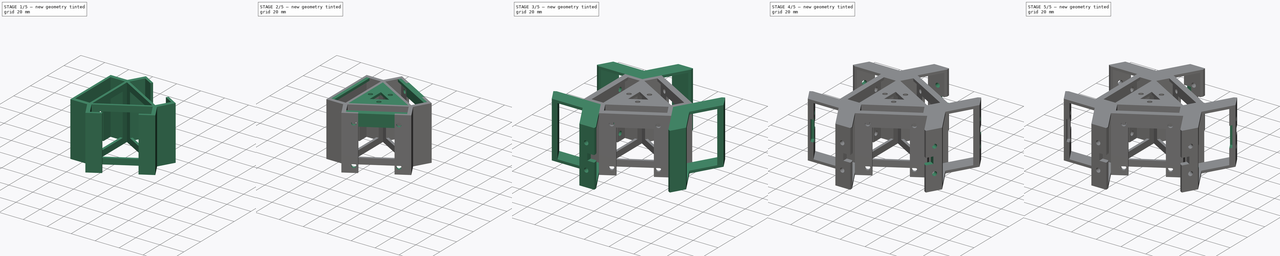
[diagram: build sequence overview — one tinted view per stage of 5, left to right]
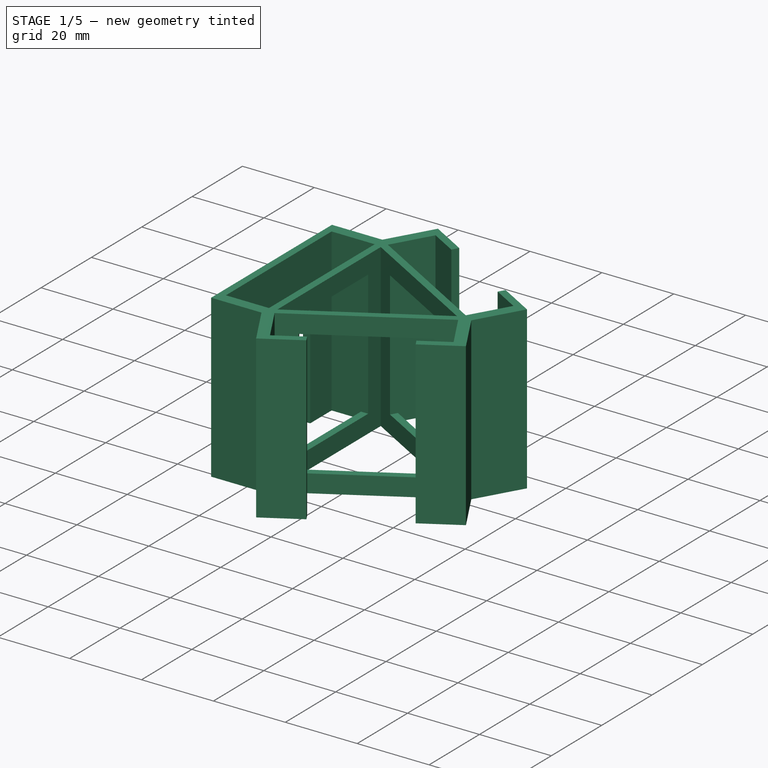
[diagram: stage 1 of 5 — iso view after this stage's code; geometry added in this stage tinted green]
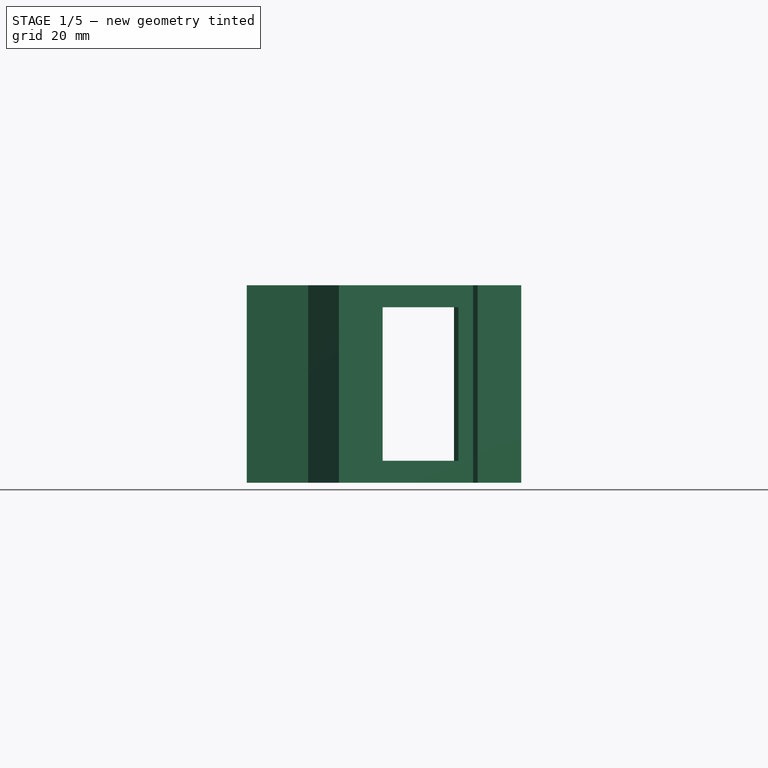
[diagram: stage 1 of 5 — front view after this stage's code; geometry added in this stage tinted green]
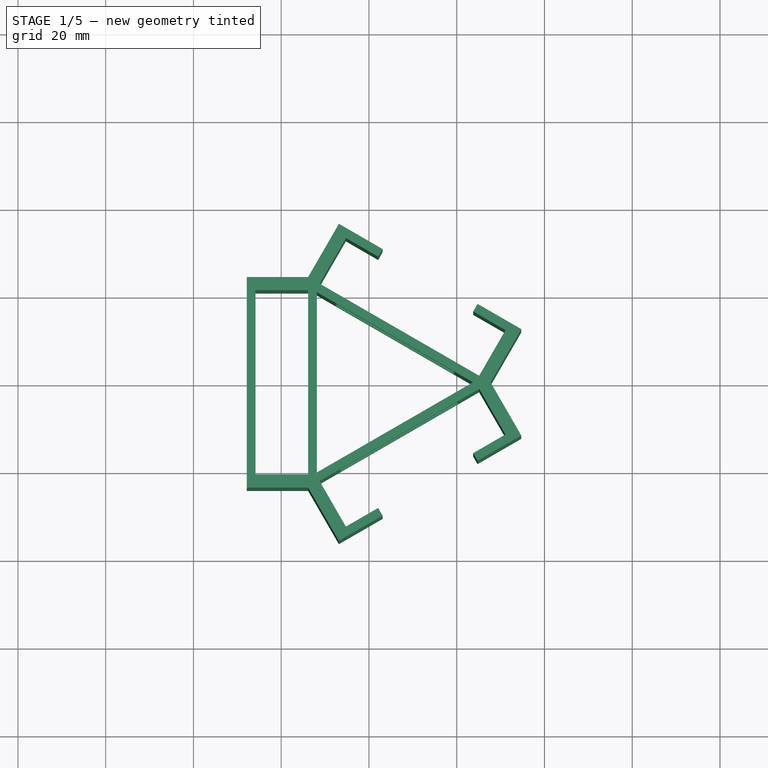
[diagram: stage 1 of 5 — top view after this stage's code; geometry added in this stage tinted green]
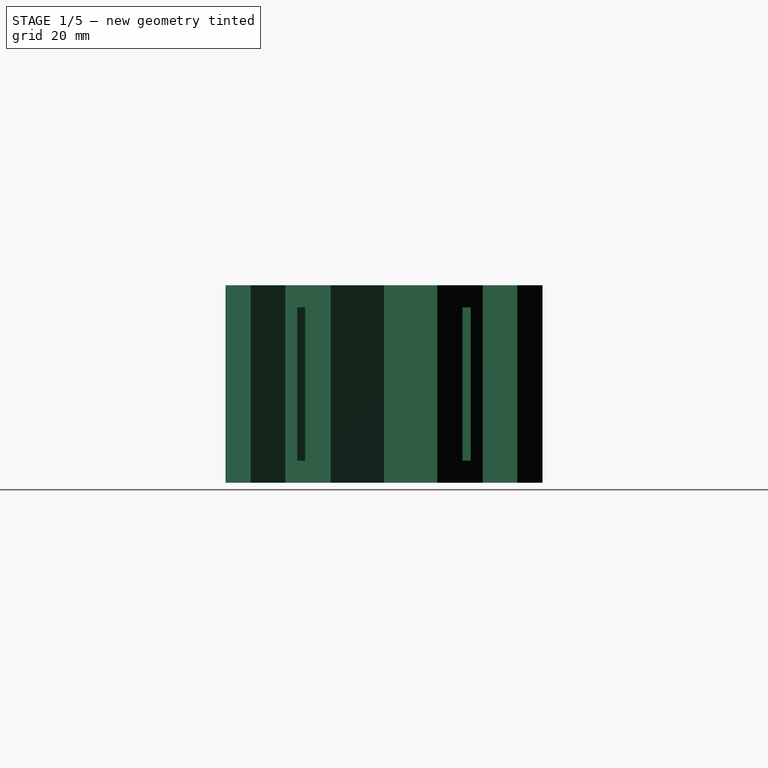
[diagram: stage 1 of 5 — right view after this stage's code; geometry added in this stage tinted green]
FCSTD DOCUMENT  (FreeCAD 0.19R)
Label: core1_motor_sensor
License: All rights reserved
LicenseURL: http://en.wikipedia.org/wiki/All_rights_reserved
objects: Sketcher::SketchObject×27, PartDesign::Pocket×18, PartDesign::Pad×9, PartDesign::Body×1
note: 82 computed .brp shape members not serialized (recipe doc carries the construction recipe); baked Part::Feature solids carry a one-line shape summary decoded from their .brp

FEATURE [Sketcher::SketchObject] Sketch
  FullyConstrained = false
  MapMode = 5
  Support = -> [XY_Plane]
  sketch-geometry (44):
    g0: LineSegment StartX=25.1147 StartY=1.5 StartZ=0 EndX=-11.2583 EndY=22.5 EndZ=0
    g1: LineSegment StartX=-13.8564 StartY=21 StartZ=0 EndX=-13.8564 EndY=-21 EndZ=0
    g2: LineSegment StartX=-11.2583 StartY=-22.5 StartZ=0 EndX=25.1147 EndY=-1.5 EndZ=0
    g3: Circle CenterX=0 CenterY=0 CenterZ=0 NormalX=0 NormalY=0 NormalZ=1 AngleXU=0 Radius=27.7128
    g4: LineSegment StartX=23.7128 StartY=0 StartZ=0 EndX=-11.8564 EndY=20.5359 EndZ=0
    g5: LineSegment StartX=-11.8564 StartY=20.5359 StartZ=0 EndX=-11.8564 EndY=-20.5359 EndZ=0
    g6: LineSegment StartX=-11.8564 StartY=-20.5359 StartZ=0 EndX=23.7128 EndY=0 EndZ=0
    g7: Circle CenterX=0 CenterY=0 CenterZ=0 NormalX=0 NormalY=0 NormalZ=1 AngleXU=0 Radius=23.7128
    g8: LineSegment StartX=-13.8564 StartY=24 StartZ=0 EndX=-27.8564 EndY=24 EndZ=0
    g9: LineSegment StartX=-27.8564 StartY=24 StartZ=0 EndX=-27.8564 EndY=21 EndZ=0
    g10: LineSegment StartX=-25.8564 StartY=21 StartZ=0 EndX=-13.8564 EndY=21 EndZ=0
    g11: LineSegment StartX=-13.8564 StartY=-24 StartZ=0 EndX=-27.8564 EndY=-24 EndZ=0
    g12: LineSegment StartX=-27.8564 StartY=-24 StartZ=0 EndX=-27.8564 EndY=-21 EndZ=0
    g13: LineSegment StartX=-25.8564 StartY=-21 StartZ=0 EndX=-13.8564 EndY=-21 EndZ=0
    g14: LineSegment StartX=-25.8564 StartY=21 StartZ=0 EndX=-25.8564 EndY=12.5 EndZ=0
    g15: LineSegment StartX=-25.8564 StartY=12.5 StartZ=0 EndX=-27.8564 EndY=12.5 EndZ=0
    g16: LineSegment StartX=-27.8564 StartY=12.5 StartZ=0 EndX=-27.8564 EndY=21 EndZ=0
    g17: LineSegment StartX=-25.8564 StartY=-21 StartZ=0 EndX=-25.8564 EndY=-12.5 EndZ=0
    g18: LineSegment StartX=-25.8564 StartY=-12.5 StartZ=0 EndX=-27.8564 EndY=-12.5 EndZ=0
    g19: LineSegment StartX=-27.8564 StartY=-12.5 StartZ=0 EndX=-27.8564 EndY=-21 EndZ=0
    g20: LineSegment StartX=-13.8564 StartY=24 StartZ=0 EndX=-6.85641 EndY=36.1244 EndZ=0
    g21: LineSegment StartX=-6.85641 StartY=36.1244 StartZ=0 EndX=-4.25833 EndY=34.6244 EndZ=0
    g22: LineSegment StartX=-5.25833 StartY=32.8923 StartZ=0 EndX=-11.2583 EndY=22.5 EndZ=0
    g23: LineSegment StartX=-4.25833 StartY=34.6244 StartZ=0 EndX=3.10289 EndY=30.3744 EndZ=0
    g24: LineSegment StartX=3.10289 StartY=30.3744 StartZ=0 EndX=2.10289 EndY=28.6423 EndZ=0
    g25: LineSegment StartX=2.10289 StartY=28.6423 StartZ=0 EndX=-5.25833 EndY=32.8923 EndZ=0
    g26: LineSegment StartX=27.7128 StartY=0 StartZ=0 EndX=34.7128 EndY=12.1244 EndZ=0
    g27: LineSegment StartX=34.7128 StartY=12.1244 StartZ=0 EndX=32.1147 EndY=13.6244 EndZ=0
    g28: LineSegment StartX=31.1147 StartY=11.8923 StartZ=0 EndX=25.1147 EndY=1.5 EndZ=0
    g29: LineSegment StartX=32.1147 StartY=13.6244 StartZ=0 EndX=24.7535 EndY=17.8744 EndZ=0
    g30: LineSegment StartX=24.7535 StartY=17.8744 StartZ=0 EndX=23.7535 EndY=16.1423 EndZ=0
    g31: LineSegment StartX=23.7535 StartY=16.1423 StartZ=0 EndX=31.1147 EndY=11.8923 EndZ=0
    g32: LineSegment StartX=27.7128 StartY=0 StartZ=0 EndX=34.7128 EndY=-12.1244 EndZ=0
    g33: LineSegment StartX=34.7128 StartY=-12.1244 StartZ=0 EndX=32.1147 EndY=-13.6244 EndZ=0
    g34: LineSegment StartX=31.1147 StartY=-11.8923 StartZ=0 EndX=25.1147 EndY=-1.5 EndZ=0
    g35: LineSegment StartX=32.1147 StartY=-13.6244 StartZ=0 EndX=24.7535 EndY=-17.8744 EndZ=0
    g36: LineSegment StartX=24.7535 StartY=-17.8744 StartZ=0 EndX=23.7535 EndY=-16.1423 EndZ=0
    g37: LineSegment StartX=23.7535 StartY=-16.1423 StartZ=0 EndX=31.1147 EndY=-11.8923 EndZ=0
    g38: LineSegment StartX=-13.8564 StartY=-24 StartZ=0 EndX=-6.85641 EndY=-36.1244 EndZ=0
    g39: LineSegment StartX=-6.85641 StartY=-36.1244 StartZ=0 EndX=-4.25833 EndY=-34.6244 EndZ=0
    g40: LineSegment StartX=-5.25833 StartY=-32.8923 StartZ=0 EndX=-11.2583 EndY=-22.5 EndZ=0
    g41: LineSegment StartX=-4.25833 StartY=-34.6244 StartZ=0 EndX=3.10289 EndY=-30.3744 EndZ=0
    g42: LineSegment StartX=3.10289 StartY=-30.3744 StartZ=0 EndX=2.10289 EndY=-28.6423 EndZ=0
    g43: LineSegment StartX=2.10289 StartY=-28.6423 StartZ=0 EndX=-5.25833 EndY=-32.8923 EndZ=0
  constraints (111):
    c: PointOnObject(g8,g3)
    c: PointOnObject(g11,g3)
    c: PointOnObject(g26,g3)
    c: Coincident(g3,g-1)
    c: PointOnObject(g26,g-1)
    c: Coincident(g4,g5)
    c: Coincident(g5,g6)
    c: Coincident(g6,g4)
    c: Equal(g4,g5)
    c: Equal(g4,g6)
    c: PointOnObject(g4,g7)
    c: PointOnObject(g5,g7)
    c: PointOnObject(g6,g7)
    c: Coincident(g7,g-1)
    c: PointOnObject(g6,g-1)
    c: Distance(g4,g0) = 2
    c: Coincident(g8,g9)
    c: Horizontal(g8)
    c: Horizontal(g10)
    c: Vertical(g9)
    c: Coincident(g11,g12)
    c: Horizontal(g11)
    c: Horizontal(g13)
    c: Vertical(g12)
    c: Distance(g8) = 14
    c: Distance(g11) = 14
    c: Distance(g12) = 3
    c: Distance(g9) = 3
    c: Coincident(g14,g15)
    c: Coincident(g15,g16)
    c: Horizontal(g15)
    c: Vertical(g14)
    c: Vertical(g16)
    c: Coincident(g17,g18)
    c: Coincident(g18,g19)
    c: Horizontal(g18)
    c: Vertical(g17)
    c: Vertical(g19)
    c: Distance(g15) = 2
    c: Distance(g18) = 2
    c: Distance(g16) = 8.5
    c: Distance(g19) = 8.5
    c: Coincident(g8,g20)
    c: Coincident(g20,g21)
    c: Angle(g0,g20) = 1.5708
    c: Parallel(g20,g22)
    c: Parallel(g21,g0)
    c: Distance(g20) = 14
    c: Distance(g21) = 3
    c: Coincident(g21,g23)
    c: Coincident(g23,g24)
    c: Coincident(g24,g25)
    c: Parallel(g23,g0)
    c: Parallel(g25,g23)
    c: Parallel(g24,g22)
    c: Distance(g23) = 8.5
    c: Distance(g24) = 2
    c: Coincident(g26,g27)
    c: Coincident(g27,g29)
    c: Coincident(g29,g30)
    c: Coincident(g30,g31)
    c: Coincident(g26,g32)
    c: Coincident(g32,g33)
    c: Coincident(g33,g35)
    c: Coincident(g35,g36)
    c: Coincident(g36,g37)
    c: Coincident(g11,g38)
    c: Coincident(g38,g39)
    c: Coincident(g39,g41)
    c: Coincident(g41,g42)
    c: Coincident(g42,g43)
    c: Distance(g26) = 14
    c: Distance(g32) = 14
    c: Distance(g38) = 14
    c: Angle(g38,g2) = 1.5708
    c: Angle(g2,g32) = 1.5708
    c: Angle(g26,g0) = 1.5708
    c: Parallel(g33,g2)
    c: Parallel(g39,g2)
    c: Parallel(g27,g0)
    c: Parallel(g29,g0)
    c: Parallel(g31,g29)
    c: Parallel(g35,g2)
    c: Parallel(g35,g37)
    c: Parallel(g30,g28)
    c: Parallel(g36,g34)
    c: Parallel(g32,g34)
    c: Parallel(g26,g28)
    c: Parallel(g40,g38)
    c: Parallel(g41,g43)
    c: Parallel(g42,g40)
    c: Parallel(g41,g2)
    c: Distance(g27) = 3
    c: Distance(g33) = 3
    c: Distance(g39) = 3
    c: Distance(g41) = 8.5
    c: Distance(g35) = 8.5
    c: Distance(g29) = 8.5
    c: Distance(g30) = 2
    c: Distance(g36) = 2
    c: Distance(g42) = 2
    c: Coincident(g22,g25)
    c: Coincident(g0,g22)
    c: PointOnObject(g1,g10)
    c: Coincident(g28,g31)
    c: Coincident(g0,g28)
    c: Coincident(g2,g34)
    c: Coincident(g34,g37)
    c: Coincident(g2,g40)
    c: Coincident(g40,g43)
    c: PointOnObject(g1,g13)
FEATURE [PartDesign::Pad] Pad
  Direction = (1,1,1)
  Length = 45
  Length2 = 100
  Profile = -> Sketch
  Type = 0
FEATURE [Sketcher::SketchObject] Sketch001
  ExternalGeometry = -> [Pad]
  FullyConstrained = true
  MapMode = 5
  Placement = pos=(-11.8564,0,0) rot=(0.57735,0.57735,0.57735;2.0944rad)
  Support = -> [Pad]
  sketch-geometry (4):
    g0: LineSegment StartX=-15.5359 StartY=40 StartZ=0 EndX=15.5359 EndY=40 EndZ=0
    g1: LineSegment StartX=15.5359 StartY=40 StartZ=0 EndX=15.5359 EndY=5 EndZ=0
    g2: LineSegment StartX=15.5359 StartY=5 StartZ=0 EndX=-15.5359 EndY=5 EndZ=0
    g3: LineSegment StartX=-15.5359 StartY=5 StartZ=0 EndX=-15.5359 EndY=40 EndZ=0
  constraints (12):
    c: Coincident(g0,g1)
    c: Coincident(g1,g2)
    c: Coincident(g2,g3)
    c: Coincident(g3,g0)
    c: Horizontal(g0)
    c: Horizontal(g2)
    c: Vertical(g1)
    c: Vertical(g3)
    c: Distance(g0,g-5) = 5
    c: Distance(g0,g-3) = 5
    c: Distance(g0,g-4) = 5
    c: Distance(g1,g-6) = 5
FEATURE [PartDesign::Pocket] Pocket
  BaseFeature = -> Pad
  Length = 2
  Length2 = 100
  Profile = -> Sketch001
  Type = 0
FEATURE [Sketcher::SketchObject] Sketch002
  ExternalGeometry = -> [Pocket]
  FullyConstrained = true
  MapMode = 5
  Placement = pos=(5.9282,10.2679,0) rot=(0.935113,-0.250563,-0.250563;1.63783rad)
  Support = -> [Pocket]
  sketch-geometry (4):
    g0: LineSegment StartX=-15.5359 StartY=40 StartZ=0 EndX=15.5359 EndY=40 EndZ=0
    g1: LineSegment StartX=15.5359 StartY=40 StartZ=0 EndX=15.5359 EndY=5 EndZ=0
    g2: LineSegment StartX=15.5359 StartY=5 StartZ=0 EndX=-15.5359 EndY=5 EndZ=0
    g3: LineSegment StartX=-15.5359 StartY=5 StartZ=0 EndX=-15.5359 EndY=40 EndZ=0
  constraints (12):
    c: Coincident(g0,g1)
    c: Coincident(g1,g2)
    c: Coincident(g2,g3)
    c: Coincident(g3,g0)
    c: Horizontal(g0)
    c: Horizontal(g2)
    c: Vertical(g1)
    c: Vertical(g3)
    c: Distance(g0,g-3) = 5
    c: Distance(g0,g-4) = 5
    c: Distance(g0,g-6) = 5
    c: Distance(g1,g-5) = 5
FEATURE [PartDesign::Pocket] Pocket001
  BaseFeature = -> Pocket
  Length = 2
  Length2 = 100
  Profile = -> Sketch002
  Type = 0
FEATURE [Sketcher::SketchObject] Sketch003
  ExternalGeometry = -> [Pocket001]
  FullyConstrained = true
  MapMode = 5
  Placement = pos=(5.9282,-10.2679,0) rot=(-0.186157,0.694747,0.694747;3.50969rad)
  Support = -> [Pocket001]
  sketch-geometry (4):
    g0: LineSegment StartX=-15.5359 StartY=40 StartZ=0 EndX=15.5359 EndY=40 EndZ=0
    g1: LineSegment StartX=15.5359 StartY=40 StartZ=0 EndX=15.5359 EndY=5 EndZ=0
    g2: LineSegment StartX=15.5359 StartY=5 StartZ=0 EndX=-15.5359 EndY=5 EndZ=0
    g3: LineSegment StartX=-15.5359 StartY=5 StartZ=0 EndX=-15.5359 EndY=40 EndZ=0
  constraints (12):
    c: Coincident(g0,g1)
    c: Coincident(g1,g2)
    c: Coincident(g2,g3)
    c: Coincident(g3,g0)
    c: Horizontal(g0)
    c: Horizontal(g2)
    c: Vertical(g1)
    c: Vertical(g3)
    c: Distance(g0,g-3) = 5
    c: Distance(g0,g-4) = 5
    c: Distance(g0,g-5) = 5
    c: Distance(g1,g-6) = 5
FEATURE [PartDesign::Pocket] Pocket002
  BaseFeature = -> Pocket001
  Length = 2
  Length2 = 100
  Profile = -> Sketch003
  Type = 0
FEATURE [Sketcher::SketchObject] Sketch004
  ExternalGeometry = -> [Pocket002]
  FullyConstrained = true
  MapMode = 5
  Placement = pos=(-27.8564,0,0) rot=(0.57735,-0.57735,-0.57735;2.0944rad)
  Support = -> [Pocket002]
  sketch-geometry (4):
    g0: LineSegment StartX=-12.5 StartY=45 StartZ=0 EndX=12.5 EndY=45 EndZ=0
    g1: LineSegment StartX=12.5 StartY=45 StartZ=0 EndX=12.5 EndY=35 EndZ=0
    g2: LineSegment StartX=12.5 StartY=35 StartZ=0 EndX=-12.5 EndY=35 EndZ=0
    g3: LineSegment StartX=-12.5 StartY=35 StartZ=0 EndX=-12.5 EndY=45 EndZ=0
  constraints (11):
    c: Coincident(g0,g1)
    c: Coincident(g1,g2)
    c: Coincident(g2,g3)
    c: Coincident(g3,g0)
    c: Horizontal(g0)
    c: Horizontal(g2)
    c: Vertical(g1)
    c: Vertical(g3)
    c: Coincident(g0,g-3)
    c: PointOnObject(g1,g-4)
    c: Distance(g3) = 10
FEATURE [PartDesign::Pad] Pad001
  BaseFeature = -> Pocket002
  Direction = (1,1,1)
  Length = 2
  Length2 = 100
  Profile = -> Sketch004
  Reversed = true
  Type = 0
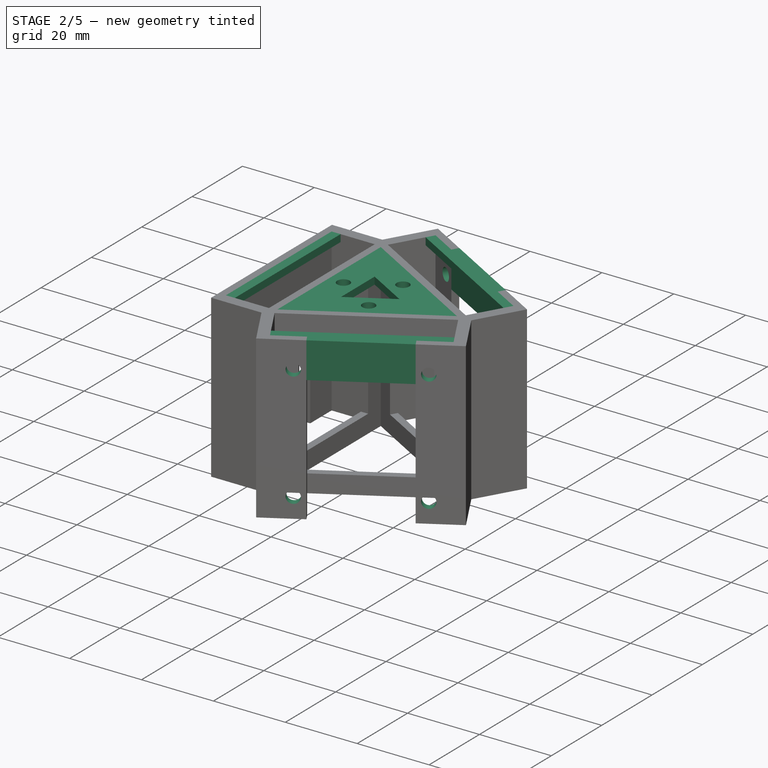
[diagram: stage 2 of 5 — iso view after this stage's code; geometry added in this stage tinted green]
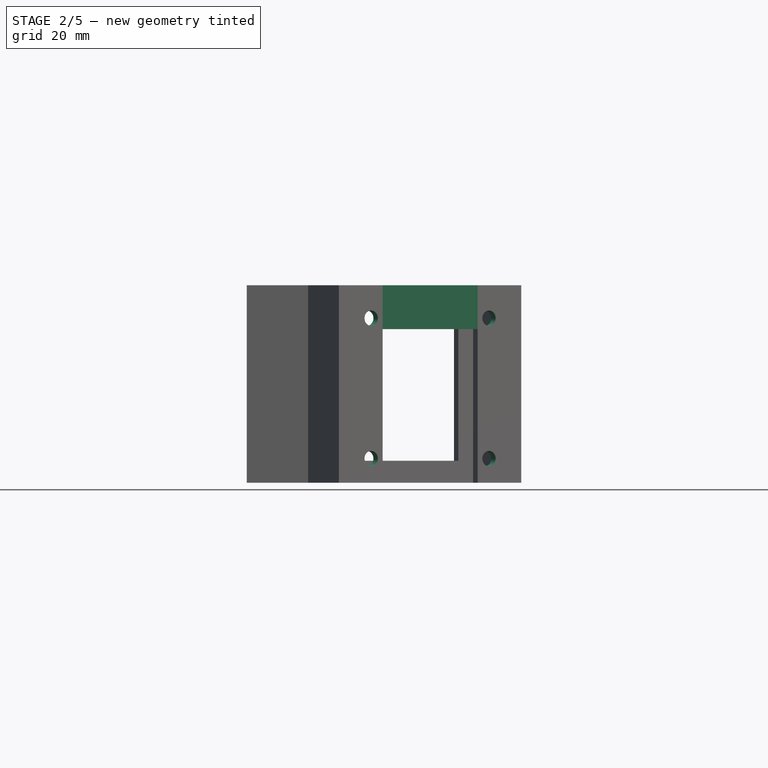
[diagram: stage 2 of 5 — front view after this stage's code; geometry added in this stage tinted green]
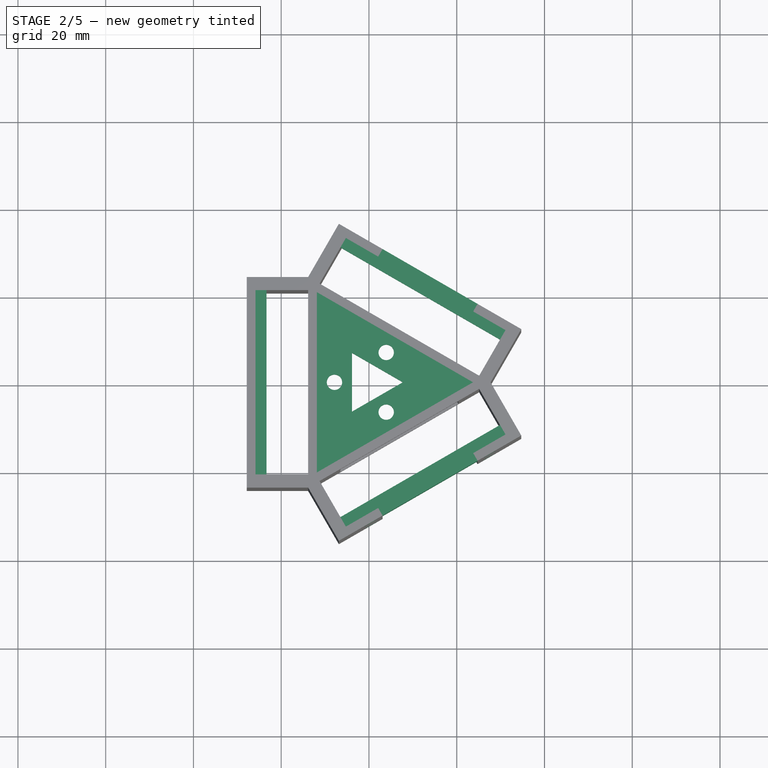
[diagram: stage 2 of 5 — top view after this stage's code; geometry added in this stage tinted green]
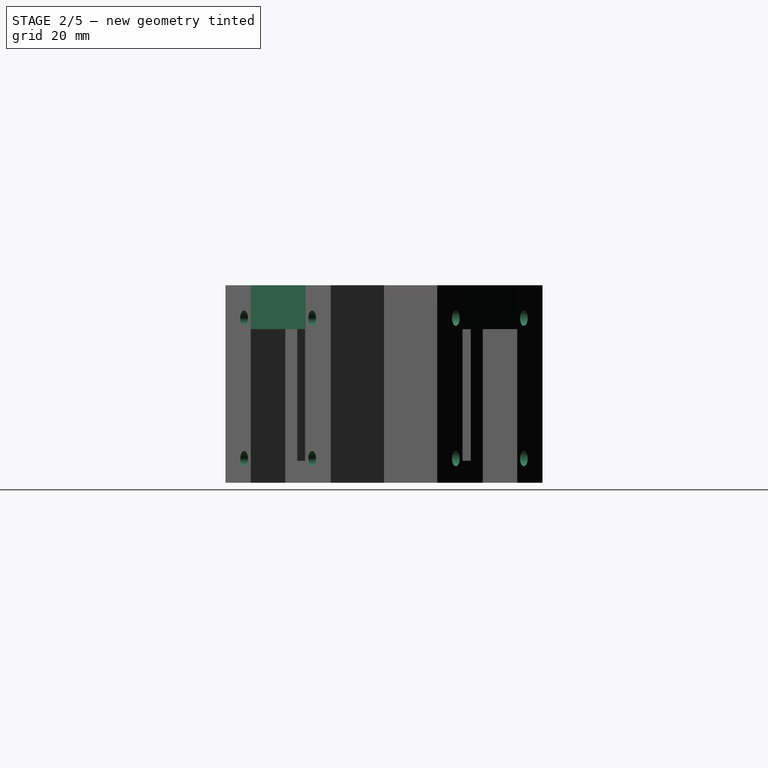
[diagram: stage 2 of 5 — right view after this stage's code; geometry added in this stage tinted green]
FEATURE [Sketcher::SketchObject] Sketch005
  ExternalGeometry = -> [Pad001]
  FullyConstrained = true
  MapMode = 5
  Placement = pos=(13.9282,-24.1244,0) rot=(0.935113,0.250563,0.250563;1.63783rad)
  Support = -> [Pad001]
  sketch-geometry (4):
    g0: LineSegment StartX=-12.5 StartY=45 StartZ=0 EndX=12.5 EndY=45 EndZ=0
    g1: LineSegment StartX=12.5 StartY=45 StartZ=0 EndX=12.5 EndY=35 EndZ=0
    g2: LineSegment StartX=12.5 StartY=35 StartZ=0 EndX=-12.5 EndY=35 EndZ=0
    g3: LineSegment StartX=-12.5 StartY=35 StartZ=0 EndX=-12.5 EndY=45 EndZ=0
  constraints (11):
    c: Coincident(g0,g1)
    c: Coincident(g1,g2)
    c: Coincident(g2,g3)
    c: Coincident(g3,g0)
    c: Horizontal(g0)
    c: Horizontal(g2)
    c: Vertical(g1)
    c: Vertical(g3)
    c: Coincident(g0,g-3)
    c: PointOnObject(g1,g-4)
    c: Distance(g3) = 10
FEATURE [PartDesign::Pad] Pad002
  BaseFeature = -> Pad001
  Direction = (1,1,1)
  Length = 2
  Length2 = 100
  Profile = -> Sketch005
  Reversed = true
  Type = 0
FEATURE [Sketcher::SketchObject] Sketch006
  ExternalGeometry = -> [Pad002]
  FullyConstrained = true
  MapMode = 5
  Placement = pos=(13.9282,24.1244,0) rot=(0.186157,0.694747,0.694747;2.77349rad)
  Support = -> [Pad002]
  sketch-geometry (4):
    g0: LineSegment StartX=-12.5 StartY=45 StartZ=0 EndX=12.5 EndY=45 EndZ=0
    g1: LineSegment StartX=12.5 StartY=45 StartZ=0 EndX=12.5 EndY=35 EndZ=0
    g2: LineSegment StartX=12.5 StartY=35 StartZ=0 EndX=-12.5 EndY=35 EndZ=0
    g3: LineSegment StartX=-12.5 StartY=35 StartZ=0 EndX=-12.5 EndY=45 EndZ=0
  constraints (11):
    c: Coincident(g0,g1)
    c: Coincident(g1,g2)
    c: Coincident(g2,g3)
    c: Coincident(g3,g0)
    c: Horizontal(g0)
    c: Horizontal(g2)
    c: Vertical(g1)
    c: Vertical(g3)
    c: Coincident(g0,g-3)
    c: PointOnObject(g1,g-4)
    c: Distance(g3) = 10
FEATURE [PartDesign::Pad] Pad003
  BaseFeature = -> Pad002
  Direction = (1,1,1)
  Length = 2
  Length2 = 100
  Profile = -> Sketch006
  Reversed = true
  Type = 0
FEATURE [Sketcher::SketchObject] Sketch007
  ExternalGeometry = -> [Pad003]
  FullyConstrained = true
  MapMode = 5
  Placement = pos=(0,0,45) rot=(0,0,1;0rad)
  Support = -> [Pad003]
  sketch-geometry (12):
    g0: LineSegment StartX=-25.8564 StartY=21 StartZ=0 EndX=-23.3564 EndY=21 EndZ=0
    g1: LineSegment StartX=-23.3564 StartY=21 StartZ=0 EndX=-23.3564 EndY=-21 EndZ=0
    g2: LineSegment StartX=-23.3564 StartY=-21 StartZ=0 EndX=-25.8564 EndY=-21 EndZ=0
    g3: LineSegment StartX=-25.8564 StartY=-21 StartZ=0 EndX=-25.8564 EndY=21 EndZ=0
    g4: LineSegment StartX=-5.25833 StartY=32.8923 StartZ=0 EndX=31.1147 EndY=11.8923 EndZ=0
    g5: LineSegment StartX=31.1147 StartY=11.8923 StartZ=0 EndX=29.8647 EndY=9.72724 EndZ=0
    g6: LineSegment StartX=29.8647 StartY=9.72724 StartZ=0 EndX=-6.50833 EndY=30.7272 EndZ=0
    g7: LineSegment StartX=-6.50833 StartY=30.7272 StartZ=0 EndX=-5.25833 EndY=32.8923 EndZ=0
    g8: LineSegment StartX=31.1147 StartY=-11.8923 StartZ=0 EndX=29.8647 EndY=-9.72724 EndZ=0
    g9: LineSegment StartX=29.8647 StartY=-9.72724 StartZ=0 EndX=-6.50833 EndY=-30.7272 EndZ=0
    g10: LineSegment StartX=-6.50833 StartY=-30.7272 StartZ=0 EndX=-5.25833 EndY=-32.8923 EndZ=0
    g11: LineSegment StartX=-5.25833 StartY=-32.8923 StartZ=0 EndX=31.1147 EndY=-11.8923 EndZ=0
  constraints (30):
    c: Coincident(g-3,g0)
    c: PointOnObject(g0,g-3)
    c: Coincident(g0,g1)
    c: PointOnObject(g1,g-4)
    c: Vertical(g1)
    c: Coincident(g1,g2)
    c: Coincident(g2,g-4)
    c: Coincident(g2,g3)
    c: Coincident(g3,g0)
    c: Coincident(g-5,g4)
    c: Coincident(g4,g-6)
    c: Coincident(g4,g5)
    c: PointOnObject(g5,g-6)
    c: Coincident(g5,g6)
    c: PointOnObject(g6,g-5)
    c: Coincident(g6,g7)
    c: Coincident(g7,g4)
    c: Coincident(g-7,g8)
    c: PointOnObject(g8,g-7)
    c: Coincident(g8,g9)
    c: PointOnObject(g9,g-8)
    c: Coincident(g9,g10)
    c: Coincident(g10,g-8)
    c: Coincident(g10,g11)
    c: Coincident(g11,g8)
    c: Parallel(g6,g4)
    c: Parallel(g9,g11)
    c: Distance(g0) = 2.5
    c: Distance(g7) = 2.5
    c: Distance(g8) = 2.5
FEATURE [PartDesign::Pad] Pad004
  BaseFeature = -> Pad003
  Direction = (1,1,1)
  Length = 2
  Length2 = 100
  Profile = -> Sketch007
  Reversed = true
  Type = 0
FEATURE [Sketcher::SketchObject] Sketch008
  ExternalGeometry = -> [Pad004]
  FullyConstrained = true
  MapMode = 5
  Placement = pos=(0,0,45) rot=(0,0,1;0rad)
  Support = -> [Pad004]
  sketch-geometry (14):
    g0: LineSegment StartX=7.71281 StartY=0 StartZ=0 EndX=-3.85641 EndY=6.67949 EndZ=0
    g1: LineSegment StartX=-3.85641 StartY=6.67949 StartZ=0 EndX=-3.85641 EndY=-6.67949 EndZ=0
    g2: LineSegment StartX=-3.85641 StartY=-6.67949 StartZ=0 EndX=7.71281 EndY=0 EndZ=0
    g3: Circle CenterX=0 CenterY=0 CenterZ=0 NormalX=0 NormalY=0 NormalZ=1 AngleXU=0 Radius=7.71281
    g4: LineSegment StartX=-7.85641 StartY=0 StartZ=0 EndX=3.9282 EndY=-6.80385 EndZ=0
    g5: LineSegment StartX=3.9282 StartY=-6.80385 StartZ=0 EndX=3.9282 EndY=6.80385 EndZ=0
    g6: LineSegment StartX=3.9282 StartY=6.80385 StartZ=0 EndX=-7.85641 EndY=0 EndZ=0
    g7: Circle CenterX=0 CenterY=0 CenterZ=0 NormalX=0 NormalY=0 NormalZ=1 AngleXU=0 Radius=7.85641
    g8: Circle CenterX=-7.85641 CenterY=0 CenterZ=0 NormalX=0 NormalY=0 NormalZ=1 AngleXU=0 Radius=1.75
    g9: Circle CenterX=3.9282 CenterY=6.80385 CenterZ=0 NormalX=0 NormalY=0 NormalZ=1 AngleXU=0 Radius=1.75
    g10: Circle CenterX=3.9282 CenterY=-6.80385 CenterZ=0 NormalX=0 NormalY=0 NormalZ=1 AngleXU=0 Radius=1.75
    g11: LineSegment StartX=-11.8564 StartY=20.5359 StartZ=0 EndX=23.7128 EndY=0 EndZ=0
    g12: LineSegment StartX=23.7128 StartY=0 StartZ=0 EndX=-11.8564 EndY=-20.5359 EndZ=0
    g13: LineSegment StartX=-11.8564 StartY=-20.5359 StartZ=0 EndX=-11.8564 EndY=20.5359 EndZ=0
  constraints (34):
    c: Coincident(g0,g1)
    c: Coincident(g1,g2)
    c: Coincident(g2,g0)
    c: Equal(g0,g1)
    c: Equal(g0,g2)
    c: PointOnObject(g0,g3)
    c: PointOnObject(g1,g3)
    c: PointOnObject(g2,g3)
    c: Coincident(g3,g-1)
    c: PointOnObject(g2,g-1)
    c: Distance(g0,g-3) = 8
    c: Coincident(g4,g5)
    c: Coincident(g5,g6)
    c: Coincident(g6,g4)
    c: Equal(g4,g5)
    c: Equal(g4,g6)
    c: PointOnObject(g4,g7)
    c: PointOnObject(g5,g7)
    c: PointOnObject(g6,g7)
    c: Coincident(g7,g-1)
    c: PointOnObject(g6,g-1)
    c: Distance(g4,g-3) = 4
    c: Coincident(g8,g4)
    c: Coincident(g9,g5)
    c: Coincident(g10,g4)
    c: Diameter(g8) = 3.5
    c: Diameter(g9) = 3.5
    c: Diameter(g10) = 3.5
    c: Coincident(g-4,g11)
    c: Coincident(g11,g-4)
    c: Coincident(g11,g12)
    c: Coincident(g12,g-3)
    c: Coincident(g12,g13)
    c: Coincident(g13,g11)
FEATURE [PartDesign::Pad] Pad005
  BaseFeature = -> Pad004
  Direction = (1,1,1)
  Length = 2
  Length2 = 100
  Profile = -> Sketch008
  Reversed = true
  Type = 0
FEATURE [Sketcher::SketchObject] Sketch009
  ExternalGeometry = -> [Pad005]
  FullyConstrained = true
  MapMode = 5
  Placement = pos=(13.9282,-24.1244,0) rot=(0.935113,0.250563,0.250563;1.63783rad)
  Support = -> [Pad005]
  sketch-geometry (4):
    g0: Circle CenterX=-15.5 CenterY=37.5 CenterZ=0 NormalX=0 NormalY=0 NormalZ=1 AngleXU=0 Radius=1.75
    g1: Circle CenterX=15.5 CenterY=37.5 CenterZ=0 NormalX=0 NormalY=0 NormalZ=1 AngleXU=0 Radius=1.75
    g2: Circle CenterX=15.5 CenterY=5.5 CenterZ=0 NormalX=0 NormalY=0 NormalZ=1 AngleXU=0 Radius=1.75
    g3: Circle CenterX=-15.5 CenterY=5.5 CenterZ=0 NormalX=0 NormalY=0 NormalZ=1 AngleXU=0 Radius=1.75
  constraints (12):
    c: Diameter(g0) = 3.5
    c: Diameter(g1) = 3.5
    c: Diameter(g2) = 3.5
    c: Diameter(g3) = 3.5
    c: Distance(g0,g-3) = 7.5
    c: Distance(g1,g-6) = 7.5
    c: Distance(g2,g-8) = 5.5
    c: Distance(g3,g-5) = 5.5
    c: Distance(g0,g-4) = 8.5
    c: Distance(g3,g-4) = 8.5
    c: Distance(g1,g-9) = 8.5
    c: Distance(g2,g-9) = 8.5
FEATURE [PartDesign::Pocket] Pocket003
  BaseFeature = -> Pad005
  Length = 2
  Length2 = 100
  Profile = -> Sketch009
  Type = 0
FEATURE [Sketcher::SketchObject] Sketch010
  ExternalGeometry = -> [Pocket003]
  FullyConstrained = true
  MapMode = 5
  Placement = pos=(13.9282,24.1244,0) rot=(0.186157,0.694747,0.694747;2.77349rad)
  Support = -> [Pocket003]
  sketch-geometry (4):
    g0: Circle CenterX=-15.5 CenterY=37.5 CenterZ=0 NormalX=0 NormalY=0 NormalZ=1 AngleXU=0 Radius=1.75
    g1: Circle CenterX=15.5 CenterY=37.5 CenterZ=0 NormalX=0 NormalY=0 NormalZ=1 AngleXU=0 Radius=1.75
    g2: Circle CenterX=15.5 CenterY=5.5 CenterZ=0 NormalX=0 NormalY=0 NormalZ=1 AngleXU=0 Radius=1.75
    g3: Circle CenterX=-15.5 CenterY=5.5 CenterZ=0 NormalX=0 NormalY=0 NormalZ=1 AngleXU=0 Radius=1.75
  constraints (12):
    c: Diameter(g0) = 3.5
    c: Diameter(g3) = 3.5
    c: Diameter(g1) = 3.5
    c: Diameter(g2) = 3.5
    c: Distance(g0,g-3) = 7.5
    c: Distance(g1,g-6) = 7.5
    c: Distance(g2,g-7) = 5.5
    c: Distance(g3,g-5) = 5.5
    c: Distance(g0,g-4) = 8.5
    c: Distance(g3,g-4) = 8.5
    c: Distance(g2,g-8) = 8.5
    c: Distance(g1,g-8) = 8.5
FEATURE [PartDesign::Pocket] Pocket004
  BaseFeature = -> Pocket003
  Length = 2
  Length2 = 100
  Profile = -> Sketch010
  Type = 0
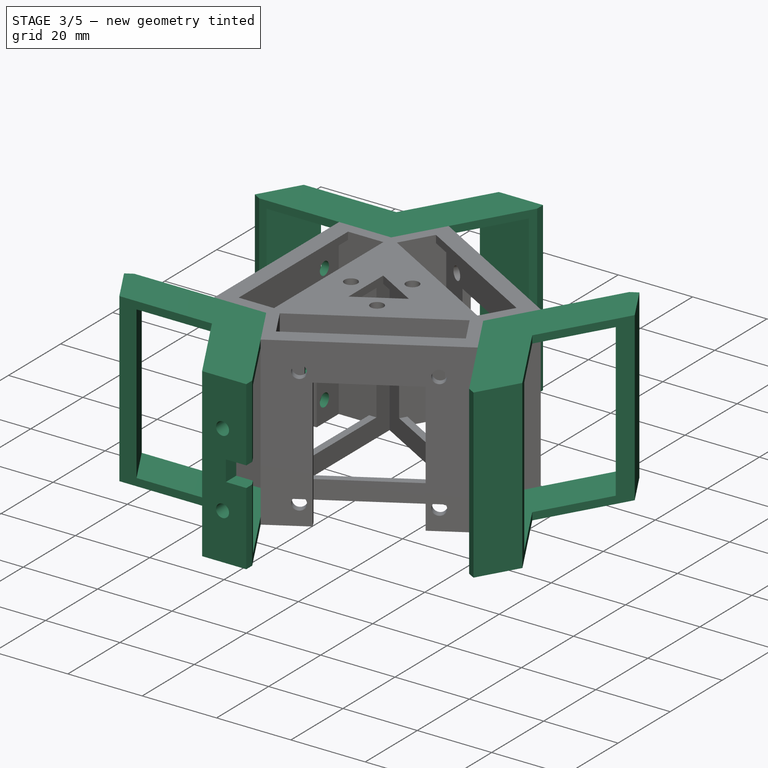
[diagram: stage 3 of 5 — iso view after this stage's code; geometry added in this stage tinted green]
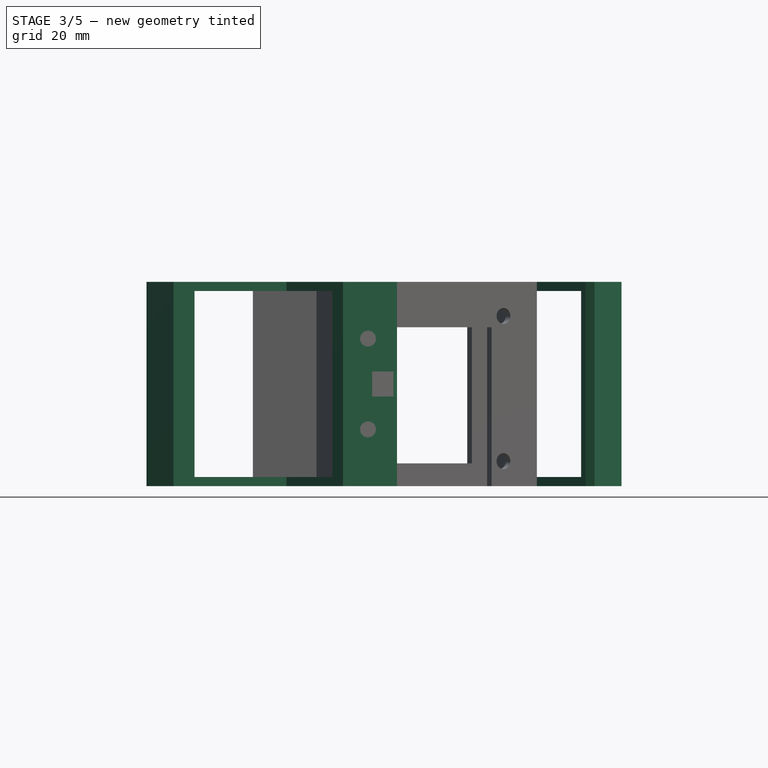
[diagram: stage 3 of 5 — front view after this stage's code; geometry added in this stage tinted green]
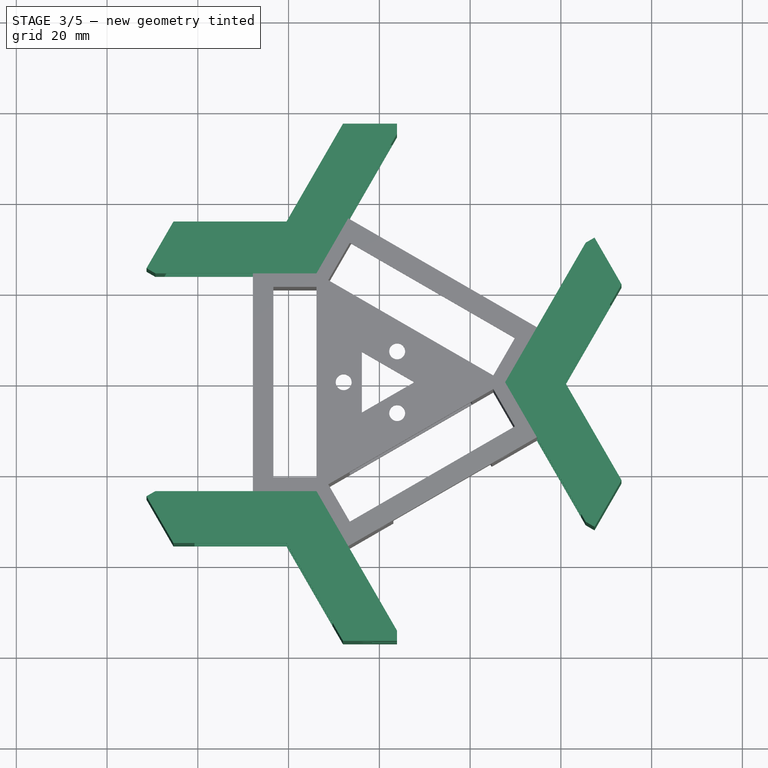
[diagram: stage 3 of 5 — top view after this stage's code; geometry added in this stage tinted green]
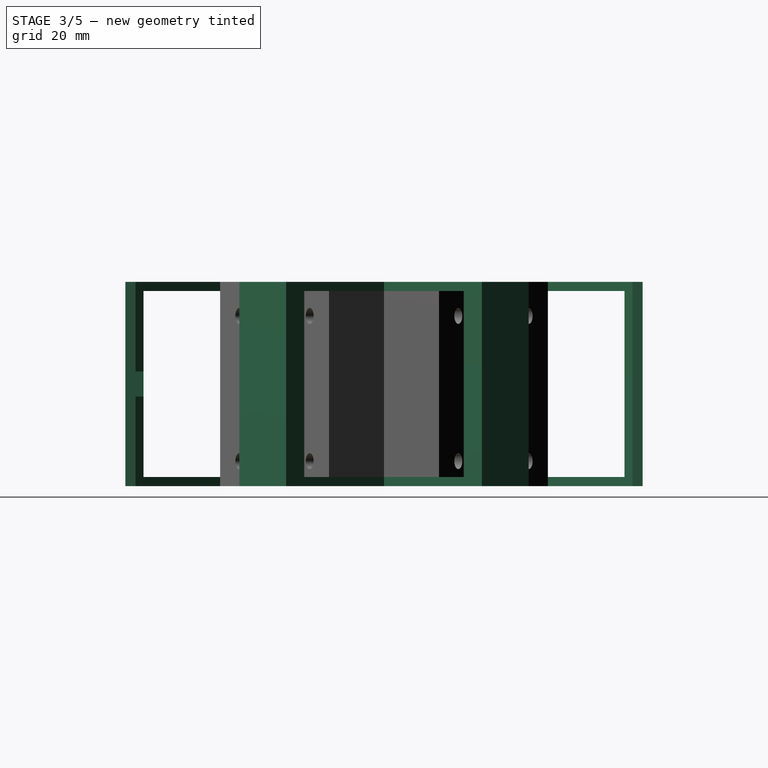
[diagram: stage 3 of 5 — right view after this stage's code; geometry added in this stage tinted green]
FEATURE [Sketcher::SketchObject] Sketch011
  ExternalGeometry = -> [Pocket004]
  FullyConstrained = true
  MapMode = 5
  Placement = pos=(-27.8564,0,0) rot=(0.57735,-0.57735,-0.57735;2.0944rad)
  Support = -> [Pocket004]
  sketch-geometry (4):
    g0: Circle CenterX=-15.5 CenterY=37.5 CenterZ=0 NormalX=0 NormalY=0 NormalZ=1 AngleXU=0 Radius=1.75
    g1: Circle CenterX=15.5 CenterY=37.5 CenterZ=0 NormalX=0 NormalY=0 NormalZ=1 AngleXU=0 Radius=1.75
    g2: Circle CenterX=15.5 CenterY=5.5 CenterZ=0 NormalX=0 NormalY=0 NormalZ=1 AngleXU=0 Radius=1.75
    g3: Circle CenterX=-15.5 CenterY=5.5 CenterZ=0 NormalX=0 NormalY=0 NormalZ=1 AngleXU=0 Radius=1.75
  constraints (12):
    c: Diameter(g0) = 3.5
    c: Diameter(g1) = 3.5
    c: Diameter(g3) = 3.5
    c: Diameter(g2) = 3.5
    c: Distance(g0,g-3) = 7.5
    c: Distance(g1,g-6) = 7.5
    c: Distance(g2,g-7) = 5.5
    c: Distance(g3,g-4) = 5.5
    c: Distance(g0,g-5) = 8.5
    c: Distance(g3,g-5) = 8.5
    c: Distance(g1,g-8) = 8.5
    c: Distance(g2,g-8) = 8.5
FEATURE [PartDesign::Pocket] Pocket005
  BaseFeature = -> Pocket004
  Length = 2
  Length2 = 100
  Profile = -> Sketch011
  Type = 0
FEATURE [Sketcher::SketchObject] Sketch012
  ExternalGeometry = -> [Pocket005]
  FullyConstrained = true
  MapMode = 5
  Placement = pos=(0,0,45) rot=(0,0,1;0rad)
  Support = -> [Pocket005]
  sketch-geometry (31):
    g0: LineSegment StartX=0 StartY=57 StartZ=0 EndX=-49.3634 EndY=28.5 EndZ=0
    g1: LineSegment StartX=-49.3634 StartY=28.5 StartZ=0 EndX=-49.3634 EndY=-28.5 EndZ=0
    g2: LineSegment StartX=-49.3634 StartY=-28.5 StartZ=0 EndX=7.1e-15 EndY=-57 EndZ=0
    g3: LineSegment StartX=7.1e-15 StartY=-57 StartZ=0 EndX=49.3634 EndY=-28.5 EndZ=0
    g4: LineSegment StartX=49.3634 StartY=-28.5 StartZ=0 EndX=49.3634 EndY=28.5 EndZ=0
    g5: LineSegment StartX=49.3634 StartY=28.5 StartZ=0 EndX=0 EndY=57 EndZ=0
    g6: Circle CenterX=0 CenterY=0 CenterZ=0 NormalX=0 NormalY=0 NormalZ=1 AngleXU=0 Radius=57
    g7: LineSegment StartX=-13.8564 StartY=24 StartZ=0 EndX=3.89711 EndY=54.75 EndZ=0
    g8: LineSegment StartX=3.89711 StartY=54.75 StartZ=0 EndX=3.89711 EndY=57 EndZ=0
    g9: LineSegment StartX=3.89711 StartY=57 StartZ=0 EndX=-8 EndY=57 EndZ=0
    g10: LineSegment StartX=-8 StartY=57 StartZ=0 EndX=-20.4545 EndY=35.4282 EndZ=0
    g11: LineSegment StartX=-20.4545 StartY=35.4282 StartZ=0 EndX=-45.3634 EndY=35.4282 EndZ=0
    g12: LineSegment StartX=-45.3634 StartY=35.4282 StartZ=0 EndX=-51.312 EndY=25.125 EndZ=0
    g13: LineSegment StartX=-51.312 StartY=25.125 StartZ=0 EndX=-49.3634 EndY=24 EndZ=0
    g14: LineSegment StartX=-49.3634 StartY=24 StartZ=0 EndX=-13.8564 EndY=24 EndZ=0
    g15: LineSegment StartX=27.7128 StartY=0 StartZ=0 EndX=45.4663 EndY=30.75 EndZ=0
    g16: LineSegment StartX=45.4663 StartY=30.75 StartZ=0 EndX=47.4149 EndY=31.875 EndZ=0
    g17: LineSegment StartX=47.4149 StartY=31.875 StartZ=0 EndX=53.3634 EndY=21.5718 EndZ=0
    g18: LineSegment StartX=53.3634 StartY=21.5718 StartZ=0 EndX=40.909 EndY=0 EndZ=0
    g19: LineSegment StartX=40.909 StartY=0 StartZ=0 EndX=53.3635 EndY=-21.5718 EndZ=0
    g20: LineSegment StartX=53.3635 StartY=-21.5718 StartZ=0 EndX=47.4149 EndY=-31.875 EndZ=0
    g21: LineSegment StartX=47.4149 StartY=-31.875 StartZ=0 EndX=45.4663 EndY=-30.75 EndZ=0
    g22: LineSegment StartX=45.4663 StartY=-30.75 StartZ=0 EndX=27.7128 EndY=0 EndZ=0
    g23: LineSegment StartX=-13.8564 StartY=-24 StartZ=0 EndX=-49.3634 EndY=-24 EndZ=0
    g24: LineSegment StartX=-49.3634 StartY=-24 StartZ=0 EndX=-51.312 EndY=-25.125 EndZ=0
    g25: LineSegment StartX=-51.312 StartY=-25.125 StartZ=0 EndX=-45.3635 EndY=-35.4282 EndZ=0
    g26: LineSegment StartX=-45.3635 StartY=-35.4282 StartZ=0 EndX=-20.4545 EndY=-35.4282 EndZ=0
    g27: LineSegment StartX=-20.4545 StartY=-35.4282 StartZ=0 EndX=-8 EndY=-57 EndZ=0
    g28: LineSegment StartX=-8 StartY=-57 StartZ=0 EndX=3.89711 EndY=-57 EndZ=0
    g29: LineSegment StartX=3.89711 StartY=-57 StartZ=0 EndX=3.89711 EndY=-54.75 EndZ=0
    g30: LineSegment StartX=3.89711 StartY=-54.75 StartZ=0 EndX=-13.8564 EndY=-24 EndZ=0
  constraints (85):
    c: Coincident(g0,g1)
    c: Coincident(g1,g2)
    c: Coincident(g2,g3)
    c: Coincident(g3,g4)
    c: Coincident(g4,g5)
    c: Coincident(g5,g0)
    c: Equal(g0, g1-g5) x5
    c: PointOnObject(g0,g6)
    c: PointOnObject(g1,g6)
    c: PointOnObject(g2,g6)
    c: PointOnObject(g3,g6)
    c: PointOnObject(g4,g6)
    c: PointOnObject(g5,g6)
    c: Coincident(g6,g-1)
    c: PointOnObject(g5,g-2)
    c: Radius(g6) = 57
    c: Coincident(g-4,g7)
    c: PointOnObject(g7,g5)
    c: Coincident(g7,g8)
    c: Coincident(g8,g9)
    c: Coincident(g9,g10)
    c: Coincident(g10,g11)
    c: Horizontal(g11)
    c: Coincident(g11,g12)
    c: Coincident(g12,g13)
    c: PointOnObject(g13,g1)
    c: Coincident(g13,g14)
    c: Coincident(g14,g7)
    c: Parallel(g-4,g7)
    c: Parallel(g-3,g14)
    c: Parallel(g7,g10)
    c: Tangent(g6,g9)
    c: Tangent(g6,g12)
    c: PointOnObject(g0,g9)
    c: PointOnObject(g0,g12)
    c: Angle(g9,g8) = 1.5708
    c: Angle(g13,g12) = 1.5708
    c: Distance(g0,g9) = 8
    c: Distance(g11,g0) = 8
    c: Coincident(g-6,g15)
    c: PointOnObject(g15,g5)
    c: Coincident(g15,g16)
    c: Coincident(g16,g17)
    c: Coincident(g17,g18)
    c: PointOnObject(g18,g-1)
    c: Coincident(g18,g19)
    c: Coincident(g19,g20)
    c: Coincident(g20,g21)
    c: PointOnObject(g21,g3)
    c: Coincident(g21,g22)
    c: Coincident(g22,g15)
    c: Parallel(g-6,g22)
    c: Parallel(g-5,g15)
    c: Parallel(g15,g18)
    c: Parallel(g19,g22)
    c: Angle(g16,g17) = 1.5708
    c: Angle(g20,g21) = 1.5708
    c: Tangent(g17,g6)
    c: Tangent(g20,g6)
    c: PointOnObject(g4,g17)
    c: PointOnObject(g3,g20)
    c: Distance(g4,g17) = 8
    c: Coincident(g-8,g23)
    c: PointOnObject(g23,g1)
    c: Coincident(g23,g24)
    c: Coincident(g24,g25)
    c: Coincident(g25,g26)
    c: Coincident(g26,g27)
    c: Coincident(g27,g28)
    c: Coincident(g28,g29)
    c: PointOnObject(g29,g3)
    c: Vertical(g29)
    c: Coincident(g29,g30)
    c: Coincident(g30,g23)
    c: Parallel(g23,g-8)
    c: Parallel(g30,g-7)
    c: Parallel(g30,g27)
    c: Parallel(g26,g23)
    c: Angle(g25,g24) = 1.5708
    c: Angle(g29,g28) = 1.5708
    c: Tangent(g6,g28)
    c: Tangent(g6,g25)
    c: PointOnObject(g1,g25)
    c: Distance(g25,g1) = 8
    c: Distance(g2,g27) = 8
FEATURE [PartDesign::Pad] Pad006
  BaseFeature = -> Pocket005
  Direction = (1,1,1)
  Length = 2
  Length2 = 100
  Profile = -> Sketch012
  Reversed = true
  Type = 0
FEATURE [Sketcher::SketchObject] Sketch013
  ExternalGeometry = -> [Pad006]
  FullyConstrained = true
  MapMode = 5
  Placement = pos=(0,0,43) rot=(1,0,0;3.14159rad)
  Support = -> [Pad006]
  sketch-geometry (30):
    g0: LineSegment StartX=-8 StartY=57 StartZ=0 EndX=3.89711 EndY=57 EndZ=0
    g1: LineSegment StartX=3.89711 StartY=57 StartZ=0 EndX=3.89711 EndY=54.75 EndZ=0
    g2: LineSegment StartX=3.89711 StartY=54.75 StartZ=0 EndX=2.88675 EndY=53 EndZ=0
    g3: LineSegment StartX=2.88675 StartY=53 StartZ=0 EndX=-10.3094 EndY=53 EndZ=0
    g4: LineSegment StartX=-10.3094 StartY=53 StartZ=0 EndX=-8 EndY=57 EndZ=0
    g5: LineSegment StartX=47.4149 StartY=31.875 StartZ=0 EndX=53.3635 EndY=21.5718 EndZ=0
    g6: LineSegment StartX=53.3635 StartY=21.5718 StartZ=0 EndX=51.0541 EndY=17.5718 EndZ=0
    g7: LineSegment StartX=51.0541 StartY=17.5718 StartZ=0 EndX=44.456 EndY=29 EndZ=0
    g8: LineSegment StartX=44.456 StartY=29 StartZ=0 EndX=45.4663 EndY=30.75 EndZ=0
    g9: LineSegment StartX=45.4663 StartY=30.75 StartZ=0 EndX=47.4149 EndY=31.875 EndZ=0
    g10: LineSegment StartX=47.4149 StartY=-31.875 StartZ=0 EndX=53.3634 EndY=-21.5718 EndZ=0
    g11: LineSegment StartX=53.3634 StartY=-21.5718 StartZ=0 EndX=51.054 EndY=-17.5718 EndZ=0
    g12: LineSegment StartX=51.054 StartY=-17.5718 StartZ=0 EndX=44.456 EndY=-29 EndZ=0
    g13: LineSegment StartX=44.456 StartY=-29 StartZ=0 EndX=45.4663 EndY=-30.75 EndZ=0
    g14: LineSegment StartX=45.4663 StartY=-30.75 StartZ=0 EndX=47.4149 EndY=-31.875 EndZ=0
    g15: LineSegment StartX=3.89711 StartY=-57 StartZ=0 EndX=-8 EndY=-57 EndZ=0
    g16: LineSegment StartX=-8 StartY=-57 StartZ=0 EndX=-10.3094 EndY=-53 EndZ=0
    g17: LineSegment StartX=-10.3094 StartY=-53 StartZ=0 EndX=2.88675 EndY=-53 EndZ=0
    g18: LineSegment StartX=2.88675 StartY=-53 StartZ=0 EndX=3.89711 EndY=-54.75 EndZ=0
    g19: LineSegment StartX=3.89711 StartY=-54.75 StartZ=0 EndX=3.89711 EndY=-57 EndZ=0
    g20: LineSegment StartX=-51.312 StartY=-25.125 StartZ=0 EndX=-49.3634 EndY=-24 EndZ=0
    g21: LineSegment StartX=-49.3634 StartY=-24 StartZ=0 EndX=-47.3427 EndY=-24 EndZ=0
    g22: LineSegment StartX=-47.3427 StartY=-24 StartZ=0 EndX=-40.7446 EndY=-35.4282 EndZ=0
    g23: LineSegment StartX=-40.7446 StartY=-35.4282 StartZ=0 EndX=-45.3634 EndY=-35.4282 EndZ=0
    g24: LineSegment StartX=-45.3634 StartY=-35.4282 StartZ=0 EndX=-51.312 EndY=-25.125 EndZ=0
    g25: LineSegment StartX=-51.312 StartY=25.125 StartZ=0 EndX=-49.3634 EndY=24 EndZ=0
    g26: LineSegment StartX=-49.3634 StartY=24 StartZ=0 EndX=-47.3427 EndY=24 EndZ=0
    g27: LineSegment StartX=-47.3427 StartY=24 StartZ=0 EndX=-40.7447 EndY=35.4282 EndZ=0
    g28: LineSegment StartX=-40.7447 StartY=35.4282 StartZ=0 EndX=-45.3635 EndY=35.4282 EndZ=0
    g29: LineSegment StartX=-45.3635 StartY=35.4282 StartZ=0 EndX=-51.312 EndY=25.125 EndZ=0
  constraints (72):
    c: Coincident(g-4,g0)
    c: Coincident(g0,g-4)
    c: Coincident(g0,g1)
    c: Coincident(g1,g-5)
    c: Coincident(g1,g2)
    c: PointOnObject(g2,g-5)
    c: Coincident(g2,g3)
    c: PointOnObject(g3,g-3)
    c: Horizontal(g3)
    c: Coincident(g3,g4)
    c: Coincident(g4,g0)
    c: Coincident(g-11,g5)
    c: Coincident(g5,g-12)
    c: Coincident(g5,g6)
    c: PointOnObject(g6,g-12)
    c: Coincident(g6,g7)
    c: PointOnObject(g7,g-10)
    c: Coincident(g7,g8)
    c: Coincident(g8,g-10)
    c: Coincident(g8,g9)
    c: Coincident(g9,g5)
    c: Coincident(g-14,g10)
    c: Coincident(g10,g-14)
    c: Coincident(g10,g11)
    c: PointOnObject(g11,g-13)
    c: Coincident(g11,g12)
    c: PointOnObject(g12,g-15)
    c: Coincident(g12,g13)
    c: Coincident(g13,g-15)
    c: Coincident(g13,g14)
    c: Coincident(g14,g10)
    c: Coincident(g-17,g15)
    c: Coincident(g15,g-18)
    c: Coincident(g15,g16)
    c: PointOnObject(g16,g-18)
    c: Coincident(g16,g17)
    c: PointOnObject(g17,g-16)
    c: Horizontal(g17)
    c: Coincident(g17,g18)
    c: Coincident(g18,g-16)
    c: Coincident(g18,g19)
    c: Coincident(g19,g15)
    c: Coincident(g-20,g20)
    c: Coincident(g20,g-21)
    c: Coincident(g20,g21)
    c: PointOnObject(g21,g-21)
    c: Coincident(g21,g22)
    c: PointOnObject(g22,g-19)
    c: Coincident(g22,g23)
    c: Coincident(g23,g-20)
    c: Coincident(g23,g24)
    c: Coincident(g24,g20)
    c: Coincident(g-8,g25)
    c: Coincident(g25,g-9)
    c: Coincident(g25,g26)
    c: PointOnObject(g26,g-9)
    c: Coincident(g26,g27)
    c: PointOnObject(g27,g-6)
    c: Coincident(g27,g28)
    c: Coincident(g28,g-8)
    c: Coincident(g28,g29)
    c: Coincident(g29,g25)
    c: Parallel(g29,g27)
    c: Parallel(g5,g7)
    c: Parallel(g10,g12)
    c: Parallel(g24,g22)
    c: Distance(g0,g3) = 4
    c: Distance(g5,g7) = 4
    c: Distance(g10,g12) = 4
    c: Distance(g15,g17) = 4
    c: Distance(g23,g22) = 4
    c: Distance(g28,g27) = 4
FEATURE [PartDesign::Pad] Pad007
  BaseFeature = -> Pad006
  Direction = (1,1,1)
  Length = 43
  Length2 = 100
  Profile = -> Sketch013
  Type = 0
FEATURE [Sketcher::SketchObject] Sketch014
  ExternalGeometry = -> [Pad007]
  FullyConstrained = true
  MapMode = 5
  Placement = pos=(0,0,-7.1e-15) rot=(1,0,0;3.14159rad)
  Support = -> [Pad007]
  sketch-geometry (18):
    g0: LineSegment StartX=-40.7447 StartY=35.4282 StartZ=0 EndX=-20.4545 EndY=35.4282 EndZ=0
    g1: LineSegment StartX=-20.4545 StartY=35.4282 StartZ=0 EndX=-10.3094 EndY=53 EndZ=0
    g2: LineSegment StartX=-10.3094 StartY=53 StartZ=0 EndX=2.88675 EndY=53 EndZ=0
    g3: LineSegment StartX=2.88675 StartY=53 StartZ=0 EndX=-13.8564 EndY=24 EndZ=0
    g4: LineSegment StartX=-13.8564 StartY=24 StartZ=0 EndX=-47.3427 EndY=24 EndZ=0
    g5: LineSegment StartX=-47.3427 StartY=24 StartZ=0 EndX=-40.7447 EndY=35.4282 EndZ=0
    g6: LineSegment StartX=44.456 StartY=29 StartZ=0 EndX=51.0541 EndY=17.5718 EndZ=0
    g7: LineSegment StartX=51.0541 StartY=17.5718 StartZ=0 EndX=40.909 EndY=0 EndZ=0
    g8: LineSegment StartX=40.909 StartY=0 StartZ=0 EndX=51.054 EndY=-17.5718 EndZ=0
    g9: LineSegment StartX=51.054 StartY=-17.5718 StartZ=0 EndX=44.456 EndY=-29 EndZ=0
    g10: LineSegment StartX=44.456 StartY=-29 StartZ=0 EndX=27.7128 EndY=0 EndZ=0
    g11: LineSegment StartX=27.7128 StartY=0 StartZ=0 EndX=44.456 EndY=29 EndZ=0
    g12: LineSegment StartX=-47.3427 StartY=-24 StartZ=0 EndX=-13.8564 EndY=-24 EndZ=0
    g13: LineSegment StartX=-13.8564 StartY=-24 StartZ=0 EndX=2.88675 EndY=-53 EndZ=0
    g14: LineSegment StartX=2.88675 StartY=-53 StartZ=0 EndX=-10.3094 EndY=-53 EndZ=0
    g15: LineSegment StartX=-10.3094 StartY=-53 StartZ=0 EndX=-20.4545 EndY=-35.4282 EndZ=0
    g16: LineSegment StartX=-20.4545 StartY=-35.4282 StartZ=0 EndX=-40.7446 EndY=-35.4282 EndZ=0
    g17: LineSegment StartX=-40.7446 StartY=-35.4282 StartZ=0 EndX=-47.3427 EndY=-24 EndZ=0
  constraints (36):
    c: Coincident(g-7,g0)
    c: Coincident(g0,g-5)
    c: Coincident(g0,g1)
    c: Coincident(g1,g-8)
    c: Coincident(g1,g2)
    c: Coincident(g2,g-8)
    c: Coincident(g2,g3)
    c: Coincident(g3,g-6)
    c: Coincident(g3,g4)
    c: Coincident(g4,g-7)
    c: Coincident(g4,g5)
    c: Coincident(g5,g0)
    c: Coincident(g-10,g6)
    c: Coincident(g6,g-10)
    c: Coincident(g6,g7)
    c: Coincident(g7,g-11)
    c: Coincident(g7,g8)
    c: Coincident(g8,g-11)
    c: Coincident(g8,g9)
    c: Coincident(g9,g10)
    c: Coincident(g10,g-9)
    c: Coincident(g10,g11)
    c: Coincident(g11,g6)
    c: Coincident(g9,g-12)
    c: Coincident(g-16,g12)
    c: Coincident(g12,g-13)
    c: Coincident(g12,g13)
    c: Coincident(g13,g-14)
    c: Coincident(g13,g14)
    c: Coincident(g14,g-14)
    c: Coincident(g14,g15)
    c: Coincident(g15,g-15)
    c: Coincident(g15,g16)
    c: Coincident(g16,g-15)
    c: Coincident(g16,g17)
    c: Coincident(g17,g12)
FEATURE [PartDesign::Pad] Pad008
  BaseFeature = -> Pad007
  Direction = (1,1,1)
  Length = 2
  Length2 = 100
  Profile = -> Sketch014
  Reversed = true
  Type = 0
FEATURE [Sketcher::SketchObject] Sketch015
  ExternalGeometry = -> [Pad008]
  FullyConstrained = true
  MapMode = 5
  Placement = pos=(0,-57,0) rot=(1,0,0;1.5708rad)
  Support = -> [Pad008]
  sketch-geometry (6):
    g0: Circle CenterX=-2.5 CenterY=32.5 CenterZ=0 NormalX=0 NormalY=0 NormalZ=1 AngleXU=0 Radius=1.75
    g1: Circle CenterX=-2.5 CenterY=12.5 CenterZ=0 NormalX=0 NormalY=0 NormalZ=1 AngleXU=0 Radius=1.75
    g2: LineSegment StartX=3.89711 StartY=25.25 StartZ=0 EndX=-1.60289 EndY=25.25 EndZ=0
    g3: LineSegment StartX=-1.60289 StartY=25.25 StartZ=0 EndX=-1.60289 EndY=19.75 EndZ=0
    g4: LineSegment StartX=-1.60289 StartY=19.75 StartZ=0 EndX=3.89711 EndY=19.75 EndZ=0
    g5: LineSegment StartX=3.89711 StartY=19.75 StartZ=0 EndX=3.89711 EndY=25.25 EndZ=0
  constraints (18):
    c: Diameter(g0) = 3.5
    c: Diameter(g1) = 3.5
    c: Distance(g0,g-3) = 5.5
    c: Distance(g1,g-3) = 5.5
    c: Distance(g1,g-4) = 12.5
    c: Distance(g1,g0) = 20
    c: Coincident(g2,g3)
    c: Coincident(g3,g4)
    c: Coincident(g4,g5)
    c: Coincident(g5,g2)
    c: Horizontal(g2)
    c: Horizontal(g4)
    c: Vertical(g3)
    c: Vertical(g5)
    c: PointOnObject(g2,g-5)
    c: Distance(g4) = 5.5
    c: Distance(g3) = 5.5
    c: Distance(g1,g4) = 7.25
FEATURE [PartDesign::Pocket] Pocket006
  BaseFeature = -> Pad008
  Length = 5
  Length2 = 100
  Profile = -> Sketch015
  Type = 0
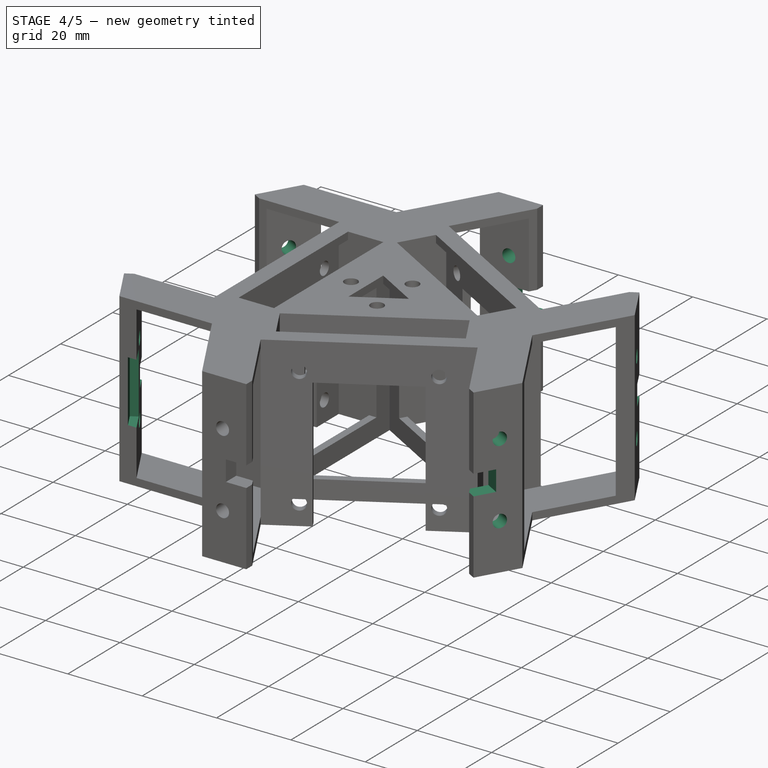
[diagram: stage 4 of 5 — iso view after this stage's code; geometry added in this stage tinted green]
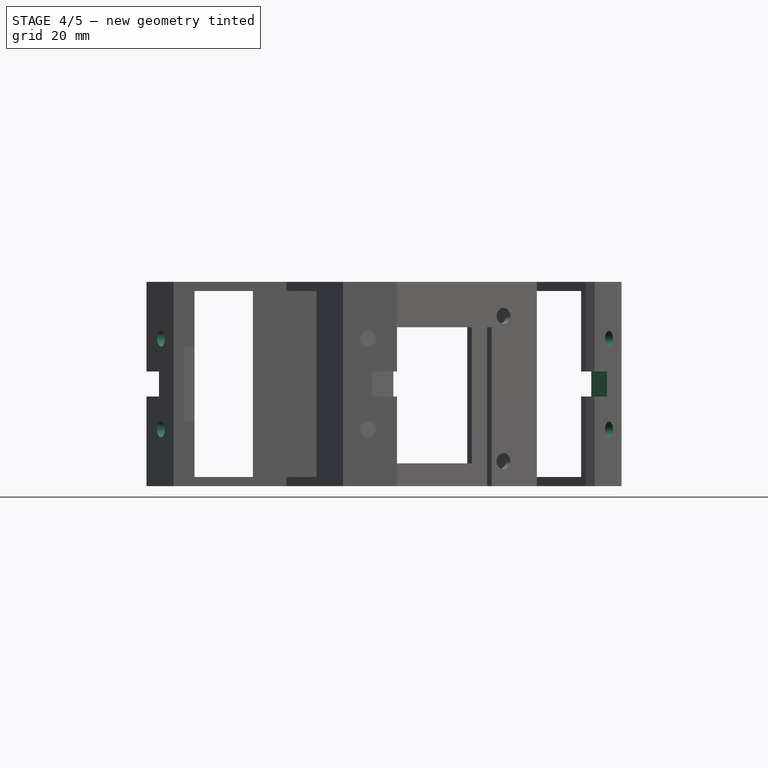
[diagram: stage 4 of 5 — front view after this stage's code; geometry added in this stage tinted green]
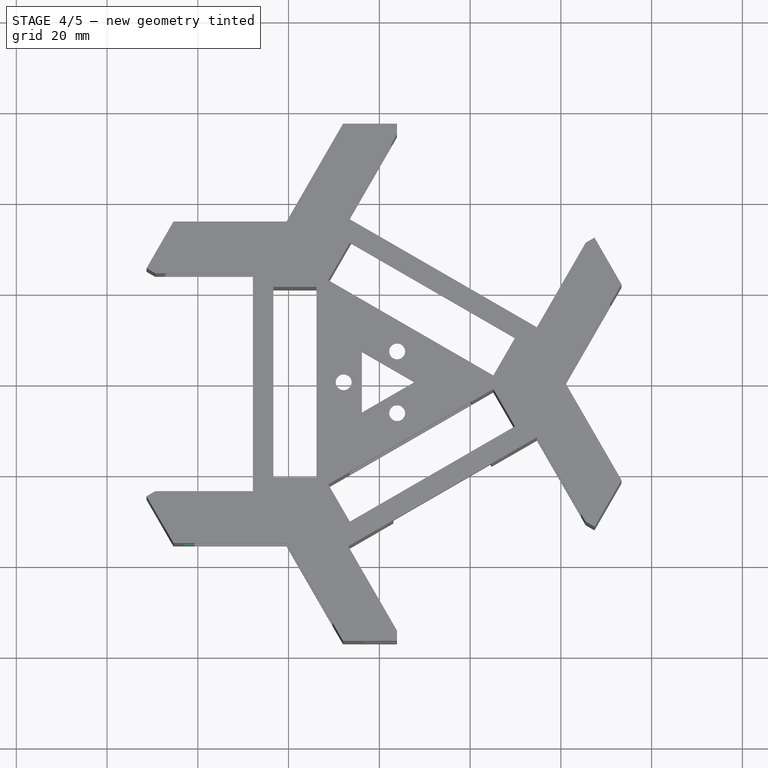
[diagram: stage 4 of 5 — top view after this stage's code; geometry added in this stage tinted green]
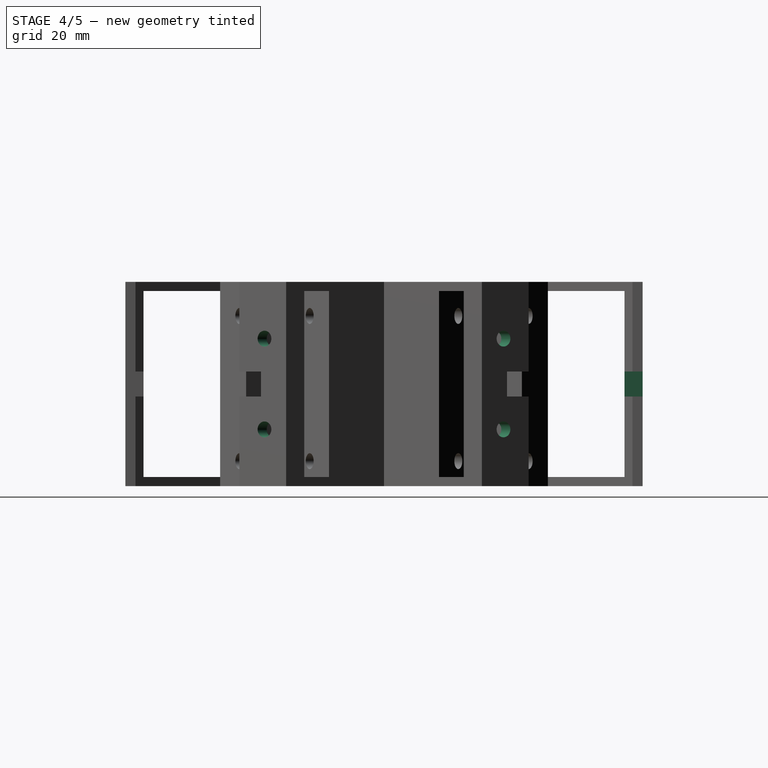
[diagram: stage 4 of 5 — right view after this stage's code; geometry added in this stage tinted green]
FEATURE [Sketcher::SketchObject] Sketch016
  ExternalGeometry = -> [Pocket006]
  FullyConstrained = true
  MapMode = 5
  Placement = pos=(49.3634,-28.5001,0) rot=(0.774597,0.447213,0.447213;1.82348rad)
  Support = -> [Pocket006]
  sketch-geometry (6):
    g0: Circle CenterX=2.50006 CenterY=12.5 CenterZ=0 NormalX=0 NormalY=0 NormalZ=1 AngleXU=0 Radius=1.75
    g1: Circle CenterX=2.50006 CenterY=32.5 CenterZ=0 NormalX=0 NormalY=0 NormalZ=1 AngleXU=0 Radius=1.75
    g2: LineSegment StartX=-3.89705 StartY=25.25 StartZ=0 EndX=1.60295 EndY=25.25 EndZ=0
    g3: LineSegment StartX=1.60295 StartY=25.25 StartZ=0 EndX=1.60295 EndY=19.75 EndZ=0
    g4: LineSegment StartX=1.60295 StartY=19.75 StartZ=0 EndX=-3.89705 EndY=19.75 EndZ=0
    g5: LineSegment StartX=-3.89705 StartY=19.75 StartZ=0 EndX=-3.89705 EndY=25.25 EndZ=0
  constraints (18):
    c: Diameter(g1) = 3.5
    c: Diameter(g0) = 3.5
    c: Distance(g1,g-3) = 5.5
    c: Distance(g0,g-3) = 5.5
    c: Distance(g0,g-4) = 12.5
    c: Distance(g0,g1) = 20
    c: Coincident(g2,g3)
    c: Coincident(g3,g4)
    c: Coincident(g4,g5)
    c: Coincident(g5,g2)
    c: Horizontal(g2)
    c: Horizontal(g4)
    c: Vertical(g3)
    c: Vertical(g5)
    c: PointOnObject(g2,g-5)
    c: Distance(g2) = 5.5
    c: Distance(g5) = 5.5
    c: Distance(g0,g4) = 7.25
FEATURE [PartDesign::Pocket] Pocket007
  BaseFeature = -> Pocket006
  Length = 5
  Length2 = 100
  Profile = -> Sketch016
  Type = 0
FEATURE [Sketcher::SketchObject] Sketch017
  ExternalGeometry = -> [Pocket007]
  FullyConstrained = true
  MapMode = 5
  Placement = pos=(49.3634,28.5,0) rot=(0.377964,0.654654,0.654654;2.41886rad)
  Support = -> [Pocket007]
  sketch-geometry (6):
    g0: Circle CenterX=-2.5 CenterY=32.5 CenterZ=0 NormalX=0 NormalY=0 NormalZ=1 AngleXU=0 Radius=1.75
    g1: Circle CenterX=-2.5 CenterY=12.5 CenterZ=0 NormalX=0 NormalY=0 NormalZ=1 AngleXU=0 Radius=1.75
    g2: LineSegment StartX=3.89712 StartY=25.25 StartZ=0 EndX=-1.60288 EndY=25.25 EndZ=0
    g3: LineSegment StartX=-1.60288 StartY=25.25 StartZ=0 EndX=-1.60288 EndY=19.75 EndZ=0
    g4: LineSegment StartX=-1.60288 StartY=19.75 StartZ=0 EndX=3.89712 EndY=19.75 EndZ=0
    g5: LineSegment StartX=3.89712 StartY=19.75 StartZ=0 EndX=3.89712 EndY=25.25 EndZ=0
  constraints (18):
    c: Coincident(g2,g3)
    c: Coincident(g3,g4)
    c: Coincident(g4,g5)
    c: Coincident(g5,g2)
    c: Horizontal(g2)
    c: Horizontal(g4)
    c: Vertical(g3)
    c: Vertical(g5)
    c: PointOnObject(g2,g-5)
    c: Diameter(g0) = 3.5
    c: Diameter(g1) = 3.5
    c: Distance(g2) = 5.5
    c: Distance(g3) = 5.5
    c: Distance(g1,g4) = 7.25
    c: Distance(g0,g-3) = 5.5
    c: Distance(g1,g-3) = 5.5
    c: Distance(g1,g-4) = 12.5
    c: Distance(g1,g0) = 20
FEATURE [PartDesign::Pocket] Pocket008
  BaseFeature = -> Pocket007
  Length = 5
  Length2 = 100
  Profile = -> Sketch017
  Type = 0
FEATURE [Sketcher::SketchObject] Sketch018
  ExternalGeometry = -> [Pocket008]
  FullyConstrained = true
  MapMode = 5
  Placement = pos=(7.09125e-07,57,0) rot=(0,0.707107,0.707107;3.14159rad)
  Support = -> [Pocket008]
  sketch-geometry (6):
    g0: Circle CenterX=2.5 CenterY=32.5 CenterZ=0 NormalX=0 NormalY=0 NormalZ=1 AngleXU=0 Radius=1.75
    g1: Circle CenterX=2.5 CenterY=12.5 CenterZ=0 NormalX=0 NormalY=0 NormalZ=1 AngleXU=0 Radius=1.75
    g2: LineSegment StartX=-3.89711 StartY=25.25 StartZ=0 EndX=1.60289 EndY=25.25 EndZ=0
    g3: LineSegment StartX=1.60289 StartY=25.25 StartZ=0 EndX=1.60289 EndY=19.75 EndZ=0
    g4: LineSegment StartX=1.60289 StartY=19.75 StartZ=0 EndX=-3.89711 EndY=19.75 EndZ=0
    g5: LineSegment StartX=-3.89711 StartY=19.75 StartZ=0 EndX=-3.89711 EndY=25.25 EndZ=0
  constraints (18):
    c: Coincident(g2,g3)
    c: Coincident(g3,g4)
    c: Coincident(g4,g5)
    c: Coincident(g5,g2)
    c: Horizontal(g2)
    c: Horizontal(g4)
    c: Vertical(g3)
    c: Vertical(g5)
    c: PointOnObject(g2,g-5)
    c: Diameter(g0) = 3.5
    c: Diameter(g1) = 3.5
    c: Distance(g2) = 5.5
    c: Distance(g3) = 5.5
    c: Distance(g1,g4) = 7.25
    c: Distance(g0,g-3) = 5.5
    c: Distance(g1,g-3) = 5.5
    c: Distance(g1,g-4) = 12.5
    c: Distance(g1,g0) = 20
FEATURE [PartDesign::Pocket] Pocket009
  BaseFeature = -> Pocket008
  Length = 5
  Length2 = 100
  Profile = -> Sketch018
  Type = 0
FEATURE [Sketcher::SketchObject] Sketch019
  ExternalGeometry = -> [Pocket009]
  FullyConstrained = true
  MapMode = 5
  Placement = pos=(-49.3634,28.5,0) rot=(-0.377964,0.654654,0.654654;3.86433rad)
  Support = -> [Pocket009]
  sketch-geometry (6):
    g0: Circle CenterX=-2.5 CenterY=32.5 CenterZ=0 NormalX=0 NormalY=0 NormalZ=1 AngleXU=0 Radius=1.75
    g1: Circle CenterX=-2.5 CenterY=12.5 CenterZ=0 NormalX=0 NormalY=0 NormalZ=1 AngleXU=0 Radius=1.75
    g2: LineSegment StartX=3.89712 StartY=25.25 StartZ=0 EndX=-1.60288 EndY=25.25 EndZ=0
    g3: LineSegment StartX=-1.60288 StartY=25.25 StartZ=0 EndX=-1.60288 EndY=19.75 EndZ=0
    g4: LineSegment StartX=-1.60288 StartY=19.75 StartZ=0 EndX=3.89712 EndY=19.75 EndZ=0
    g5: LineSegment StartX=3.89712 StartY=19.75 StartZ=0 EndX=3.89712 EndY=25.25 EndZ=0
  constraints (18):
    c: Coincident(g2,g3)
    c: Coincident(g3,g4)
    c: Coincident(g4,g5)
    c: Coincident(g5,g2)
    c: Horizontal(g2)
    c: Horizontal(g4)
    c: Vertical(g3)
    c: Vertical(g5)
    c: PointOnObject(g2,g-5)
    c: Diameter(g0) = 3.5
    c: Diameter(g1) = 3.5
    c: Distance(g0,g-3) = 5.5
    c: Distance(g1,g-3) = 5.5
    c: Distance(g1,g-4) = 12.5
    c: Distance(g1,g0) = 20
    c: Distance(g2) = 5.5
    c: Distance(g3) = 5.5
    c: Distance(g1,g4) = 7.25
FEATURE [PartDesign::Pocket] Pocket010
  BaseFeature = -> Pocket009
  Length = 5
  Length2 = 100
  Profile = -> Sketch019
  Type = 0
FEATURE [Sketcher::SketchObject] Sketch020
  ExternalGeometry = -> [Pocket010]
  FullyConstrained = true
  MapMode = 5
  Placement = pos=(-49.3635,-28.4999,0) rot=(0.774596,-0.447214,-0.447214;1.82348rad)
  Support = -> [Pocket010]
  sketch-geometry (6):
    g0: Circle CenterX=2.50007 CenterY=32.5 CenterZ=0 NormalX=0 NormalY=0 NormalZ=1 AngleXU=0 Radius=1.75
    g1: Circle CenterX=2.50007 CenterY=12.5 CenterZ=0 NormalX=0 NormalY=0 NormalZ=1 AngleXU=0 Radius=1.75
    g2: LineSegment StartX=-3.89705 StartY=25.25 StartZ=0 EndX=1.60295 EndY=25.25 EndZ=0
    g3: LineSegment StartX=1.60295 StartY=25.25 StartZ=0 EndX=1.60295 EndY=19.75 EndZ=0
    g4: LineSegment StartX=1.60295 StartY=19.75 StartZ=0 EndX=-3.89705 EndY=19.75 EndZ=0
    g5: LineSegment StartX=-3.89705 StartY=19.75 StartZ=0 EndX=-3.89705 EndY=25.25 EndZ=0
  constraints (18):
    c: Coincident(g2,g3)
    c: Coincident(g3,g4)
    c: Coincident(g4,g5)
    c: Coincident(g5,g2)
    c: Horizontal(g2)
    c: Horizontal(g4)
    c: Vertical(g3)
    c: Vertical(g5)
    c: PointOnObject(g2,g-5)
    c: Diameter(g0) = 3.5
    c: Diameter(g1) = 3.5
    c: Distance(g0,g-3) = 5.5
    c: Distance(g1,g-3) = 5.5
    c: Distance(g1,g-4) = 12.5
    c: Distance(g1,g0) = 20
    c: Distance(g2) = 5.5
    c: Distance(g3) = 5.5
    c: Distance(g1,g4) = 7.25
FEATURE [PartDesign::Pocket] Pocket011
  BaseFeature = -> Pocket010
  Length = 5
  Length2 = 100
  Profile = -> Sketch020
  Type = 0
FEATURE [Sketcher::SketchObject] Sketch021
  ExternalGeometry = -> [Pocket011]
  FullyConstrained = true
  MapMode = 5
  Placement = pos=(-45.8994,-26.4999,0) rot=(0.377965,0.654654,0.654654;2.41886rad)
  Support = -> [Pocket011]
  sketch-geometry (4):
    g0: LineSegment StartX=-10.3095 StartY=30.75 StartZ=0 EndX=-4.50007 EndY=30.75 EndZ=0
    g1: LineSegment StartX=-4.50007 StartY=30.75 StartZ=0 EndX=-4.50007 EndY=14.25 EndZ=0
    g2: LineSegment StartX=-4.50007 StartY=14.25 StartZ=0 EndX=-10.3095 EndY=14.25 EndZ=0
    g3: LineSegment StartX=-10.3095 StartY=14.25 StartZ=0 EndX=-10.3095 EndY=30.75 EndZ=0
  constraints (12):
    c: Coincident(g0,g1)
    c: Coincident(g1,g2)
    c: Coincident(g2,g3)
    c: Coincident(g3,g0)
    c: Horizontal(g0)
    c: Horizontal(g2)
    c: Vertical(g1)
    c: Vertical(g3)
    c: PointOnObject(g0,g-5)
    c: Distance(g0,g-6) = 3.5
    c: Distance(g-3,g0) = 1.75
    c: Distance(g-4,g2) = 1.75
FEATURE [PartDesign::Pocket] Pocket012
  BaseFeature = -> Pocket011
  Length = 2
  Length2 = 100
  Profile = -> Sketch021
  Type = 0
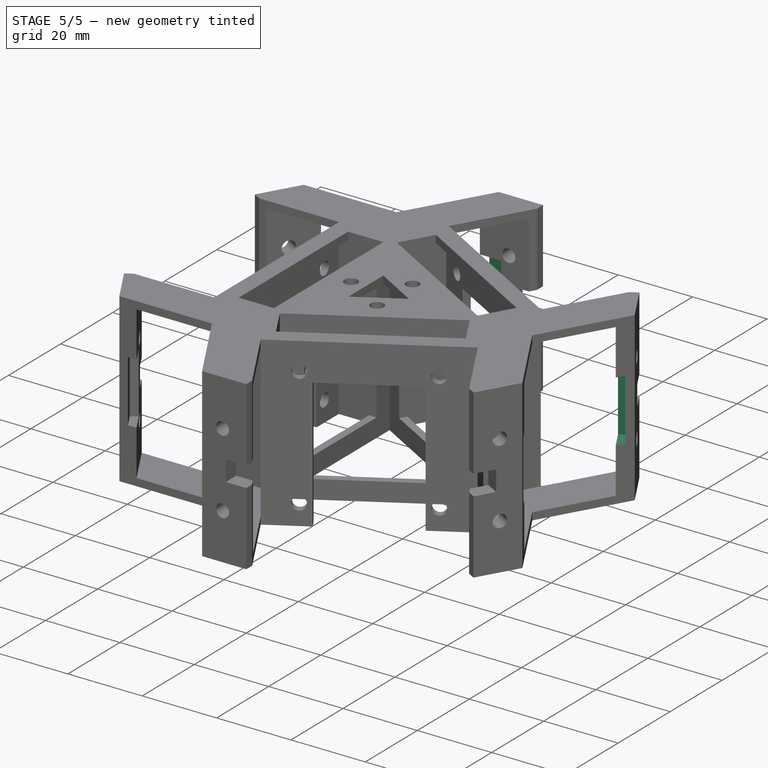
[diagram: stage 5 of 5 — iso view after this stage's code; geometry added in this stage tinted green]
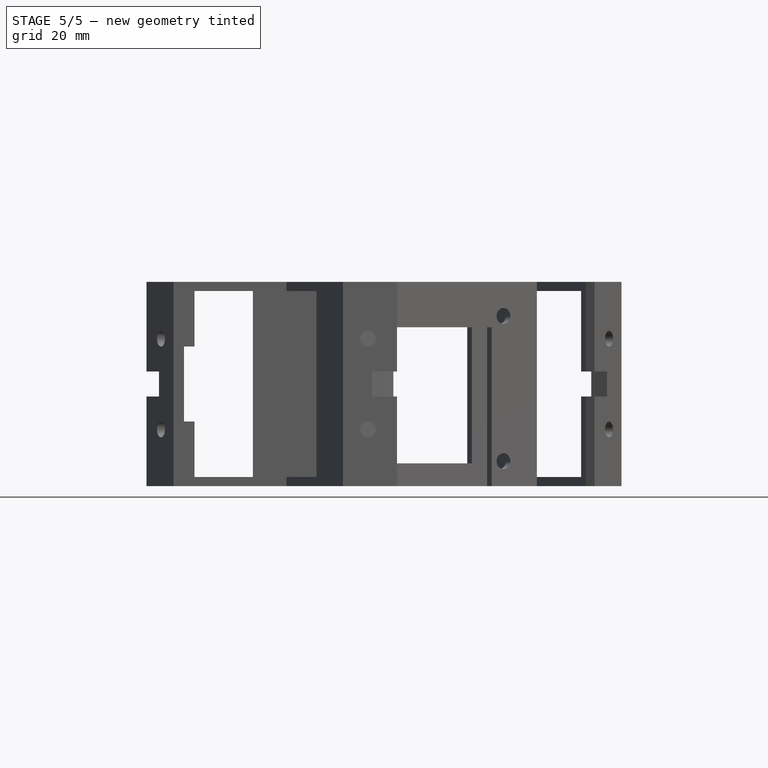
[diagram: stage 5 of 5 — front view after this stage's code; geometry added in this stage tinted green]
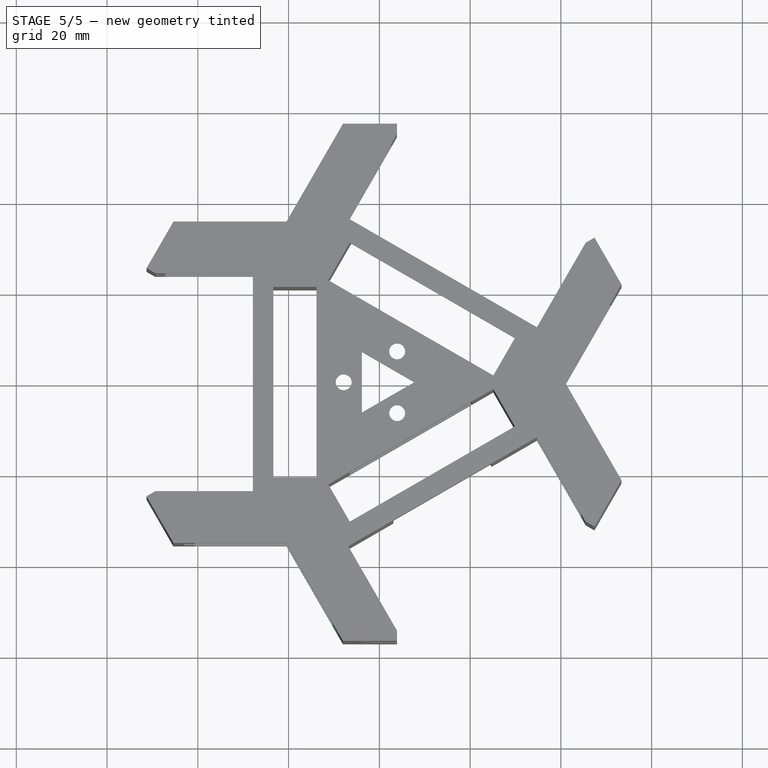
[diagram: stage 5 of 5 — top view after this stage's code; geometry added in this stage tinted green]
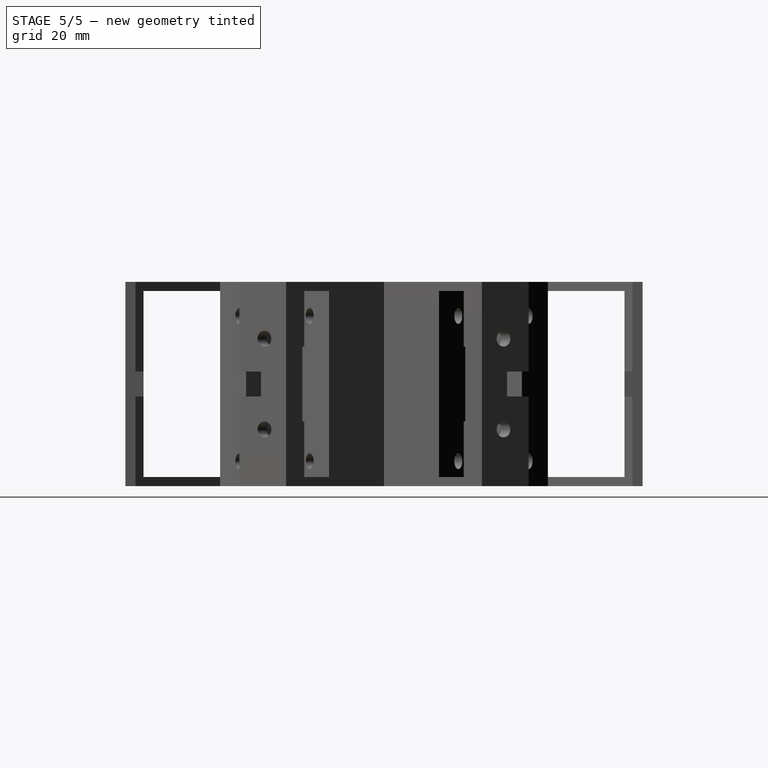
[diagram: stage 5 of 5 — right view after this stage's code; geometry added in this stage tinted green]
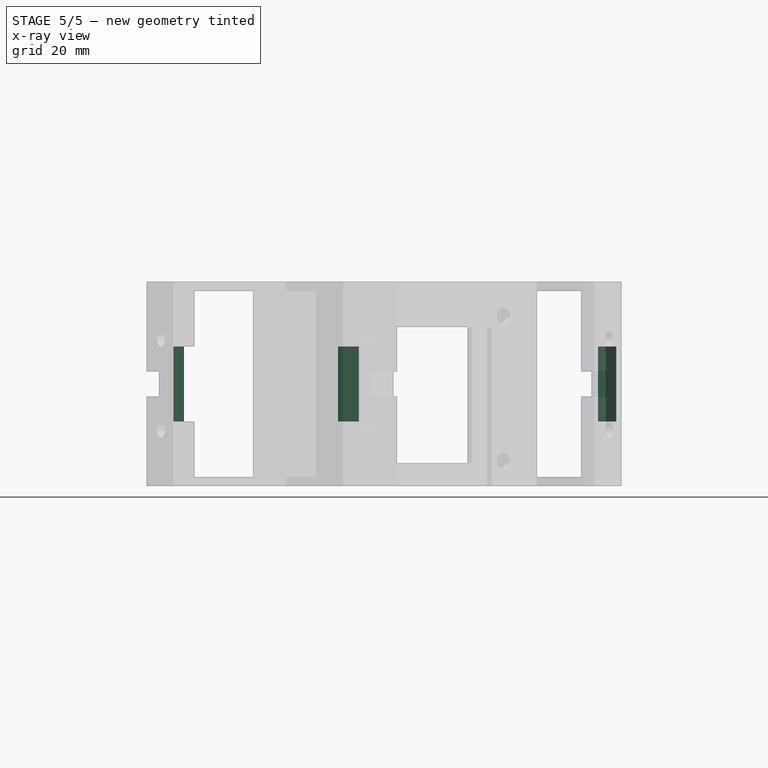
[diagram: stage 5 of 5 — x-ray composite at the front view; earlier geometry ghosted, this stage's added geometry solid]
FEATURE [Sketcher::SketchObject] Sketch022
  ExternalGeometry = -> [Pocket012]
  FullyConstrained = true
  MapMode = 5
  Placement = pos=(-45.8993,26.5,0) rot=(0.774597,0.447214,0.447214;1.82348rad)
  Support = -> [Pocket012]
  sketch-geometry (4):
    g0: LineSegment StartX=10.3094 StartY=30.75 StartZ=0 EndX=4.5 EndY=30.75 EndZ=0
    g1: LineSegment StartX=4.5 StartY=30.75 StartZ=0 EndX=4.5 EndY=14.25 EndZ=0
    g2: LineSegment StartX=4.5 StartY=14.25 StartZ=0 EndX=10.3094 EndY=14.25 EndZ=0
    g3: LineSegment StartX=10.3094 StartY=14.25 StartZ=0 EndX=10.3094 EndY=30.75 EndZ=0
  constraints (12):
    c: Coincident(g0,g1)
    c: Coincident(g1,g2)
    c: Coincident(g2,g3)
    c: Coincident(g3,g0)
    c: Horizontal(g0)
    c: Horizontal(g2)
    c: Vertical(g1)
    c: Vertical(g3)
    c: PointOnObject(g0,g-6)
    c: Distance(g0,g-5) = 3.5
    c: Distance(g-3,g0) = 1.75
    c: Distance(g-4,g2) = 1.75
FEATURE [PartDesign::Pocket] Pocket013
  BaseFeature = -> Pocket012
  Length = 2
  Length2 = 100
  Profile = -> Sketch022
  Type = 0
FEATURE [Sketcher::SketchObject] Sketch023
  ExternalGeometry = -> [Pocket013]
  FullyConstrained = true
  MapMode = 5
  Placement = pos=(0,53,0) rot=(1,0,0;1.5708rad)
  Support = -> [Pocket013]
  sketch-geometry (4):
    g0: LineSegment StartX=-10.3094 StartY=30.75 StartZ=0 EndX=-4.5 EndY=30.75 EndZ=0
    g1: LineSegment StartX=-4.5 StartY=30.75 StartZ=0 EndX=-4.5 EndY=14.25 EndZ=0
    g2: LineSegment StartX=-4.5 StartY=14.25 StartZ=0 EndX=-10.3094 EndY=14.25 EndZ=0
    g3: LineSegment StartX=-10.3094 StartY=14.25 StartZ=0 EndX=-10.3094 EndY=30.75 EndZ=0
  constraints (12):
    c: Coincident(g0,g1)
    c: Coincident(g1,g2)
    c: Coincident(g2,g3)
    c: Coincident(g3,g0)
    c: Horizontal(g0)
    c: Horizontal(g2)
    c: Vertical(g1)
    c: Vertical(g3)
    c: PointOnObject(g0,g-3)
    c: Distance(g0,g-4) = 3.5
    c: Distance(g-5,g0) = 1.75
    c: Distance(g-6,g2) = 1.75
FEATURE [PartDesign::Pocket] Pocket014
  BaseFeature = -> Pocket013
  Length = 2
  Length2 = 100
  Profile = -> Sketch023
  Type = 0
FEATURE [Sketcher::SketchObject] Sketch024
  ExternalGeometry = -> [Pocket014]
  FullyConstrained = true
  MapMode = 5
  Placement = pos=(45.8993,26.5,0) rot=(0.774597,-0.447214,-0.447214;1.82348rad)
  Support = -> [Pocket014]
  sketch-geometry (4):
    g0: LineSegment StartX=10.3094 StartY=30.75 StartZ=0 EndX=4.5 EndY=30.75 EndZ=0
    g1: LineSegment StartX=4.5 StartY=30.75 StartZ=0 EndX=4.5 EndY=14.25 EndZ=0
    g2: LineSegment StartX=4.5 StartY=14.25 StartZ=0 EndX=10.3094 EndY=14.25 EndZ=0
    g3: LineSegment StartX=10.3094 StartY=14.25 StartZ=0 EndX=10.3094 EndY=30.75 EndZ=0
  constraints (12):
    c: Coincident(g0,g1)
    c: Coincident(g1,g2)
    c: Coincident(g2,g3)
    c: Coincident(g3,g0)
    c: Horizontal(g0)
    c: Horizontal(g2)
    c: Vertical(g1)
    c: Vertical(g3)
    c: PointOnObject(g0,g-6)
    c: Distance(g0,g-3) = 3.5
    c: Distance(g-4,g0) = 1.75
    c: Distance(g-5,g2) = 1.75
FEATURE [PartDesign::Pocket] Pocket015
  BaseFeature = -> Pocket014
  Length = 2
  Length2 = 100
  Profile = -> Sketch024
  Type = 0
FEATURE [Sketcher::SketchObject] Sketch025
  ExternalGeometry = -> [Pocket015]
  FullyConstrained = true
  MapMode = 5
  Placement = pos=(0,-53,0) rot=(0,0.707107,0.707107;3.14159rad)
  Support = -> [Pocket015]
  sketch-geometry (4):
    g0: LineSegment StartX=10.3094 StartY=30.75 StartZ=0 EndX=4.5 EndY=30.75 EndZ=0
    g1: LineSegment StartX=4.5 StartY=30.75 StartZ=0 EndX=4.5 EndY=14.25 EndZ=0
    g2: LineSegment StartX=4.5 StartY=14.25 StartZ=0 EndX=10.3094 EndY=14.25 EndZ=0
    g3: LineSegment StartX=10.3094 StartY=14.25 StartZ=0 EndX=10.3094 EndY=30.75 EndZ=0
  constraints (12):
    c: Coincident(g0,g1)
    c: Coincident(g1,g2)
    c: Coincident(g2,g3)
    c: Coincident(g3,g0)
    c: Horizontal(g0)
    c: Horizontal(g2)
    c: Vertical(g1)
    c: Vertical(g3)
    c: PointOnObject(g0,g-6)
    c: Distance(g0,g-5) = 3.5
    c: Distance(g-3,g0) = 1.75
    c: Distance(g-4,g2) = 1.75
FEATURE [PartDesign::Pocket] Pocket016
  BaseFeature = -> Pocket015
  Length = 2
  Length2 = 100
  Profile = -> Sketch025
  Type = 0
FEATURE [Sketcher::SketchObject] Sketch026
  ExternalGeometry = -> [Pocket016]
  FullyConstrained = true
  MapMode = 5
  Placement = pos=(45.8993,-26.5001,0) rot=(-0.377964,0.654654,0.654654;3.86433rad)
  Support = -> [Pocket016]
  sketch-geometry (4):
    g0: LineSegment StartX=-10.3095 StartY=30.75 StartZ=0 EndX=-4.50006 EndY=30.75 EndZ=0
    g1: LineSegment StartX=-4.50006 StartY=30.75 StartZ=0 EndX=-4.50006 EndY=14.25 EndZ=0
    g2: LineSegment StartX=-4.50006 StartY=14.25 StartZ=0 EndX=-10.3095 EndY=14.25 EndZ=0
    g3: LineSegment StartX=-10.3095 StartY=14.25 StartZ=0 EndX=-10.3095 EndY=30.75 EndZ=0
  constraints (12):
    c: Coincident(g0,g1)
    c: Coincident(g1,g2)
    c: Coincident(g2,g3)
    c: Coincident(g3,g0)
    c: Horizontal(g0)
    c: Horizontal(g2)
    c: Vertical(g1)
    c: Vertical(g3)
    c: PointOnObject(g0,g-4)
    c: Distance(g0,g-3) = 3.5
    c: Distance(g-5,g0) = 1.75
    c: Distance(g-6,g2) = 1.75
FEATURE [PartDesign::Pocket] Pocket017
  BaseFeature = -> Pocket016
  Length = 2
  Length2 = 100
  Profile = -> Sketch026
  Type = 0
FEATURE [PartDesign::Body] Body
  Group = -> [Sketch,Pad,Sketch001,Pocket,Sketch002,Pocket001,Sketch003,Pocket002,Sketch004,Pad001,Sketch005,Pad002,Sketch006,Pad003,Sketch007,Pad004,Sketch008,Pad005,Sketch009,Pocket003,Sketch010,Pocket004,Sketch011,Pocket005,Sketch012,Pad006,Sketch013,Pad007,Sketch014,Pad008,Sketch015,Pocket006,Sketch016,Pocket007,Sketch017,Pocket008,Sketch018,Pocket009,Sketch019,Pocket010,Sketch020,Pocket011,Sketch021,+11 more]
  Origin = -> Origin
  Tip = -> Pocket017
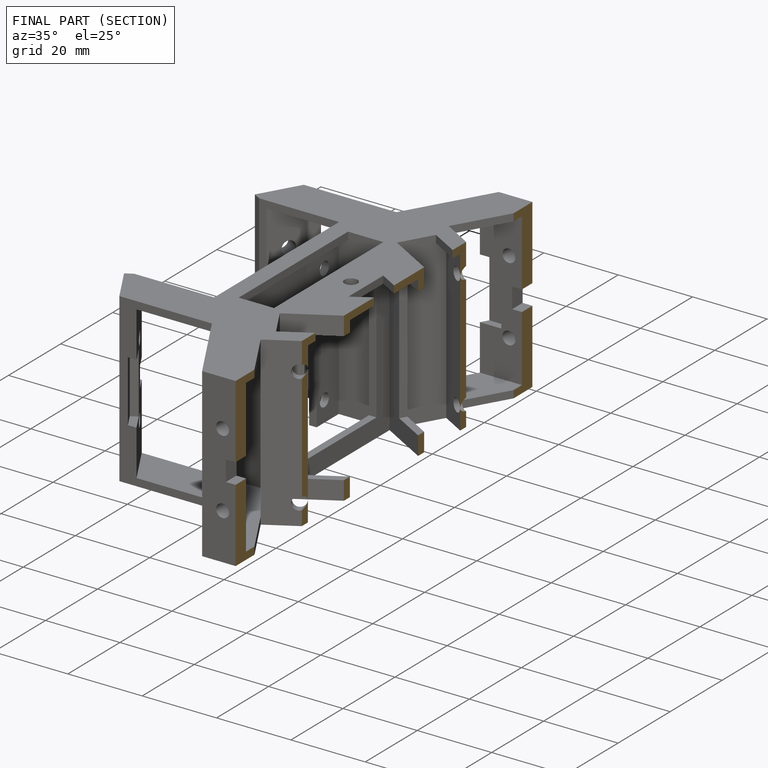
[diagram: finished part — half-section view (interior)]
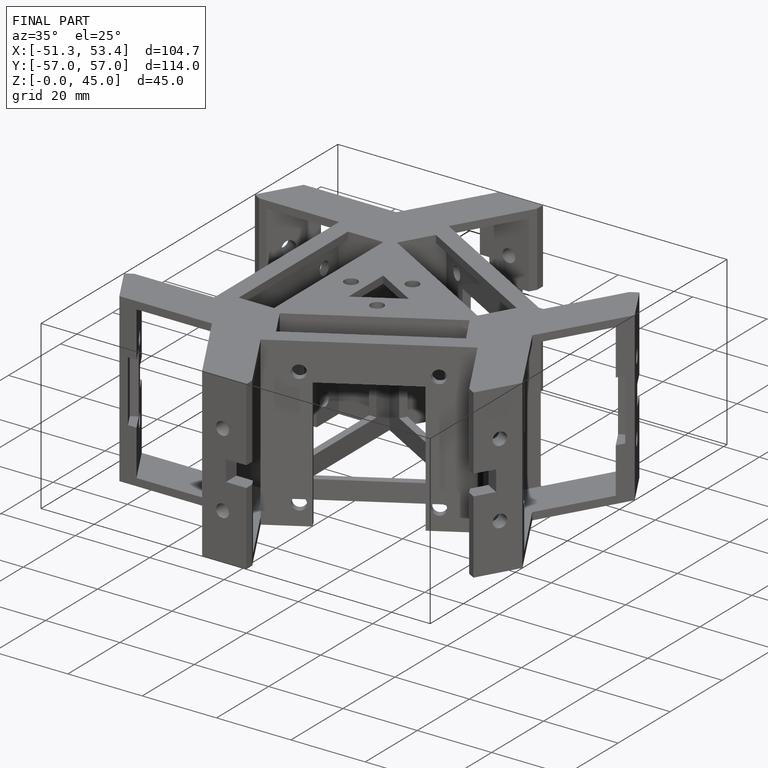
[diagram: finished part — iso view with bounding-box wireframe]
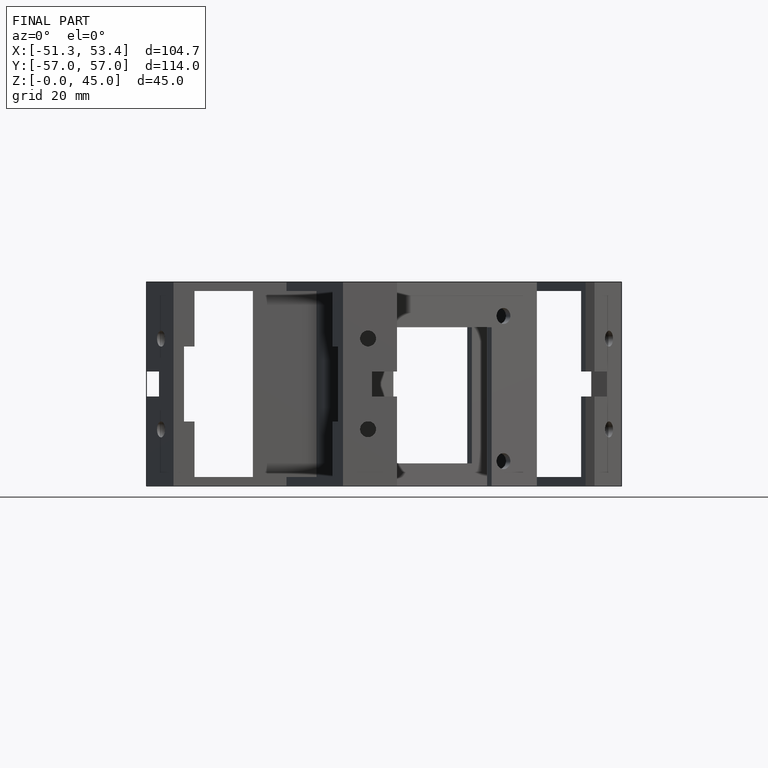
[diagram: finished part — front view with bounding-box wireframe]
